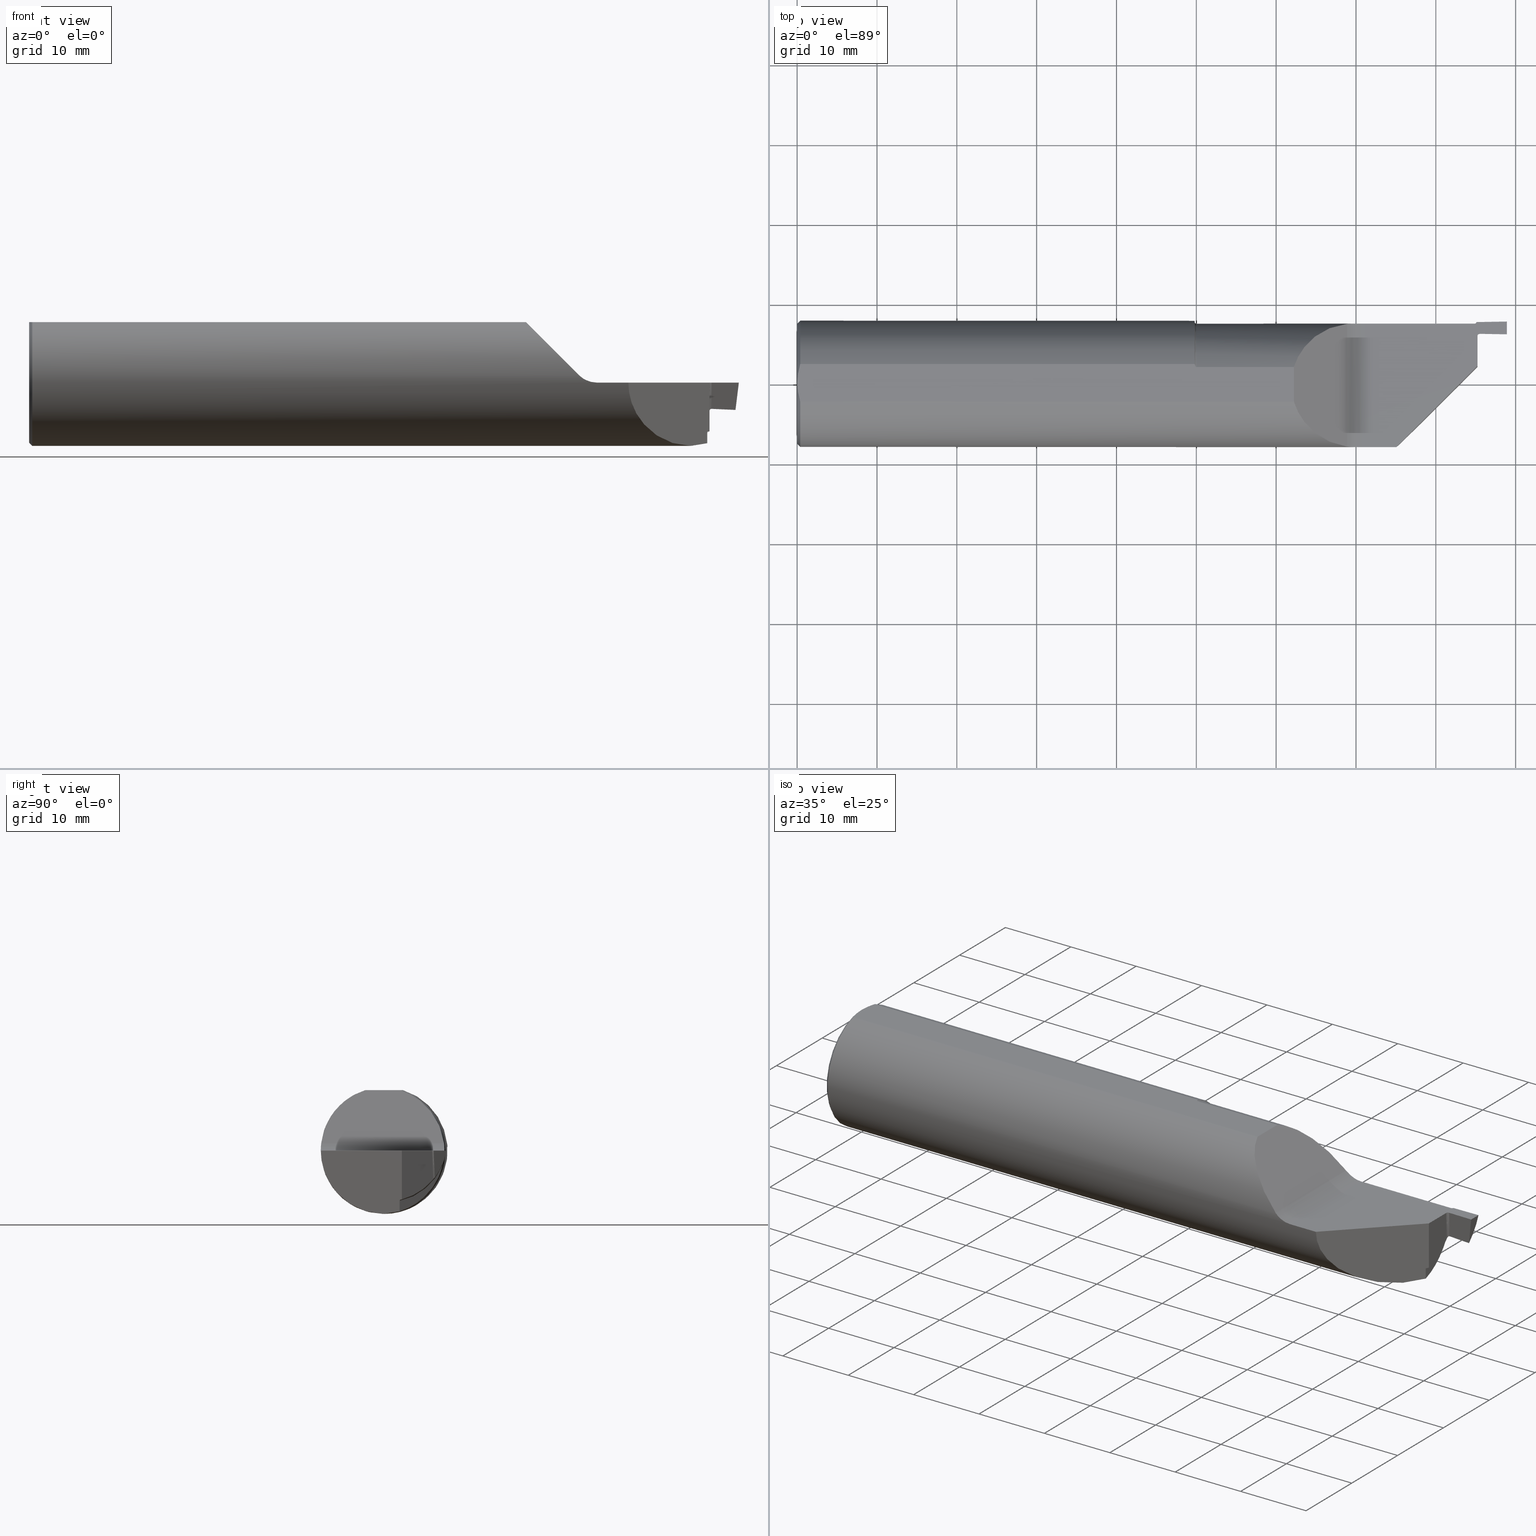
[diagram: canonical four-view strip — front | top / right | iso, engineering-drawing reading convention]
A machine part, canonical four-view strip (front | top / right | iso — engineering-drawing reading convention). The complete STEP part file that produces these views, byte-faithful:
ISO-10303-21;
HEADER;
FILE_DESCRIPTION (( 'STEP AP203' ),
    '1' );
FILE_NAME ('220145-FG625-062.STEP',
    '2024-06-10T23:52:45',
    ( '' ),
    ( '' ),
    'SwSTEP 2.0',
    'SolidWorks 2022',
    '' );
FILE_SCHEMA (( 'CONFIG_CONTROL_DESIGN' ));
ENDSEC;

DATA;
#1 = CARTESIAN_POINT ( 'NONE',  ( 0.000000000000000000, 0.000000000000000000, 0.000000000000000000 ) ) ;
#2 = CIRCLE ( 'NONE', #670, 0.3123500000000000165 ) ;
#3 = CARTESIAN_POINT ( 'NONE',  ( 3.344088245977288487, 0.07673824597728906571, -0.2481607617294554480 ) ) ;
#4 = CARTESIAN_POINT ( 'NONE',  ( 3.262867780507748616, -0.004482219492250623903, -0.3123178384409545649 ) ) ;
#5 = PLANE ( 'NONE',  #467 ) ;
#6 =( BOUNDED_CURVE ( )  B_SPLINE_CURVE ( 3, ( #4, #267, #136, #488 ),
 .UNSPECIFIED., .F., .T. ) 
 B_SPLINE_CURVE_WITH_KNOTS ( ( 4, 4 ),
 ( 4.726739463297899846, 6.283185307179586232 ),
 .UNSPECIFIED. ) 
 CURVE ( )  GEOMETRIC_REPRESENTATION_ITEM ( )  RATIONAL_B_SPLINE_CURVE ( ( 1.000000000000000000, 0.8081081314968836526, 0.8081081314968836526, 1.000000000000000000 ) ) 
 REPRESENTATION_ITEM ( '' )  );
#7 = CARTESIAN_POINT ( 'NONE',  ( 3.344088245977288487, 0.07673824597728906571, -0.2464578973247775473 ) ) ;
#8 = ADVANCED_FACE ( 'NONE', ( #139 ), #683, .F. ) ;
#9 = LINE ( 'NONE', #498, #421 ) ;
#10 = PLANE ( 'NONE',  #176 ) ;
#11 = EDGE_LOOP ( 'NONE', ( #564, #58, #772 ) ) ;
#12 = MECHANICAL_CONTEXT ( 'NONE', #465, 'mechanical' ) ;
#13 = CARTESIAN_POINT ( 'NONE',  ( 3.353006244820754045, 0.08565624482075563650, -0.2409712390270424553 ) ) ;
#14 = CARTESIAN_POINT ( 'NONE',  ( 3.341999999999999638, 0.2973492383597809430, 0.000000000000000000 ) ) ;
#15 = CONICAL_SURFACE ( 'NONE', #485, 0.2973499999999995036, 0.7853981633974460586 ) ;
#16 = VERTEX_POINT ( 'NONE', #420 ) ;
#17 = APPLICATION_PROTOCOL_DEFINITION ( 'international standard', 'config_control_design', 1994, #465 ) ;
#18 = EDGE_CURVE ( 'NONE', #275, #256, #454, .T. ) ;
#19 = PRODUCT_RELATED_PRODUCT_CATEGORY ( 'detail', '', ( #236 ) ) ;
#20 = CARTESIAN_POINT ( 'NONE',  ( 3.342000000000061810, 0.2930161518995065828, -0.05185945814795141218 ) ) ;
#21 = APPROVAL_PERSON_ORGANIZATION ( #667, #514, #875 ) ;
#22 = CARTESIAN_POINT ( 'NONE',  ( 3.450402693845658675, 0.2593229245976808039, -0.4039376432152650964 ) ) ;
#23 = ORIENTED_EDGE ( 'NONE', *, *, #881, .T. ) ;
#24 = PERSON_AND_ORGANIZATION ( #706, #618 ) ;
#25 = FACE_OUTER_BOUND ( 'NONE', #892, .T. ) ;
#26 = CARTESIAN_POINT ( 'NONE',  ( 3.343704901788177253, 0.09870001986279271222, -0.2914479566919891407 ) ) ;
#27 =( NAMED_UNIT ( * ) SI_UNIT ( $, .STERADIAN. ) SOLID_ANGLE_UNIT ( ) );
#28 = CARTESIAN_POINT ( 'NONE',  ( 1.960000000000000409, 0.07781981166122950433, 0.2983500000000000041 ) ) ;
#29 = CARTESIAN_POINT ( 'NONE',  ( 3.342626444000296626, 0.1604848251509714274, -0.2595327083607564256 ) ) ;
#30 = EDGE_CURVE ( 'NONE', #801, #521, #106, .T. ) ;
#31 = AXIS2_PLACEMENT_3D ( 'NONE', #817, #464, #43 ) ;
#32 = ORIENTED_EDGE ( 'NONE', *, *, #860, .F. ) ;
#33 = AXIS2_PLACEMENT_3D ( 'NONE', #901, #135, #266 ) ;
#34 = DIRECTION ( 'NONE',  ( -1.000000000000000000, -0.000000000000000000, -0.000000000000000000 ) ) ;
#35 = CARTESIAN_POINT ( 'NONE',  ( 2.954999999999998295, -0.3123499999999999610, 0.000000000000000000 ) ) ;
#36 = ADVANCED_FACE ( 'NONE', ( #207 ), #10, .F. ) ;
#37 = ORIENTED_EDGE ( 'NONE', *, *, #852, .F. ) ;
#38 = PERSON_AND_ORGANIZATION_ROLE ( 'classification_officer' ) ;
#39 = CARTESIAN_POINT ( 'NONE',  ( 1.960064105020415504, 0.1371422438581685610, -0.2810169237995415181 ) ) ;
#40 = VERTEX_POINT ( 'NONE', #80 ) ;
#41 = ORIENTED_EDGE ( 'NONE', *, *, #424, .T. ) ;
#42 =( BOUNDED_CURVE ( )  B_SPLINE_CURVE ( 3, ( #456, #663, #307, #122 ),
 .UNSPECIFIED., .F., .T. ) 
 B_SPLINE_CURVE_WITH_KNOTS ( ( 4, 4 ),
 ( 4.829815950483568265, 5.981106177898001697 ),
 .UNSPECIFIED. ) 
 CURVE ( )  GEOMETRIC_REPRESENTATION_ITEM ( )  RATIONAL_B_SPLINE_CURVE ( ( 1.000000000000000000, 0.8925608616953477625, 0.8925608616953477625, 1.000000000000000000 ) ) 
 REPRESENTATION_ITEM ( '' )  );
#43 = DIRECTION ( 'NONE',  ( 1.000000000000000000, 0.000000000000000000, 0.000000000000000000 ) ) ;
#44 = ORIENTED_EDGE ( 'NONE', *, *, #134, .F. ) ;
#45 = CARTESIAN_POINT ( 'NONE',  ( 3.365174524064373340, 0.2467026257962136593, -1.707404996040164512E-17 ) ) ;
#46 = VECTOR ( 'NONE', #201, 39.37007874015748854 ) ;
#47 = ORIENTED_EDGE ( 'NONE', *, *, #85, .F. ) ;
#48 = AXIS2_PLACEMENT_3D ( 'NONE', #611, #621, #131 ) ;
#49 = UNCERTAINTY_MEASURE_WITH_UNIT (LENGTH_MEASURE( 1.000000000000000082E-05 ), #846, 'distance_accuracy_value', 'NONE');
#50 = EDGE_CURVE ( 'NONE', #595, #247, #348, .T. ) ;
#51 = CARTESIAN_POINT ( 'NONE',  ( 0.01500000000000059272, 0.000000000000000000, -0.3123500000000000165 ) ) ;
#52 = CARTESIAN_POINT ( 'NONE',  ( 1.960609346587106394, 0.09615431653023193137, -0.2975417998640902950 ) ) ;
#53 = VERTEX_POINT ( 'NONE', #346 ) ;
#54 = ORIENTED_EDGE ( 'NONE', *, *, #405, .T. ) ;
#55 = CARTESIAN_POINT ( 'NONE',  ( 2.711388347648313157, -0.3101968881405479106, 0.03661165235168182402 ) ) ;
#56 = DIRECTION ( 'NONE',  ( 0.000000000000000000, 0.000000000000000000, 1.000000000000000000 ) ) ;
#57 = ORIENTED_EDGE ( 'NONE', *, *, #487, .T. ) ;
#58 = ORIENTED_EDGE ( 'NONE', *, *, #233, .T. ) ;
#59 = CARTESIAN_POINT ( 'NONE',  ( 1.960728097748990928, 0.09246512856206982878, 0.2983499999999997820 ) ) ;
#60 = CARTESIAN_POINT ( 'NONE',  ( 3.355086760165964854, 0.2476138888744324751, -0.1423577944099313486 ) ) ;
#61 = EDGE_CURVE ( 'NONE', #105, #320, #845, .T. ) ;
#62 = CARTESIAN_POINT ( 'NONE',  ( 3.354999999999999538, 0.2367041488446496589, -0.3123500000000000165 ) ) ;
#63 = DIRECTION ( 'NONE',  ( 0.000000000000000000, 0.000000000000000000, -1.000000000000000000 ) ) ;
#64 = CARTESIAN_POINT ( 'NONE',  ( 3.341999999999999638, 0.1963737778918792642, -0.2300296049984300595 ) ) ;
#65 = APPROVAL_PERSON_ORGANIZATION ( #149, #747, #428 ) ;
#66 = CARTESIAN_POINT ( 'NONE',  ( 1.961168654006056222, 0.08963362299606143779, 0.2983500000000000596 ) ) ;
#67 = CARTESIAN_POINT ( 'NONE',  ( 3.346706985850119942, 0.07935698585012063155, -0.2428819054510645281 ) ) ;
#68 = ORIENTED_EDGE ( 'NONE', *, *, #424, .F. ) ;
#69 = PLANE ( 'NONE',  #389 ) ;
#70 = CYLINDRICAL_SURFACE ( 'NONE', #270, 0.1250000000000000000 ) ;
#71 = CARTESIAN_POINT ( 'NONE',  ( 0.000000000000000000, 3.641487257264648486E-17, 0.2973499999999995036 ) ) ;
#72 = DIRECTION ( 'NONE',  ( -1.000000000000000000, 0.000000000000000000, -0.000000000000000000 ) ) ;
#73 = CIRCLE ( 'NONE', #371, 0.3123500000000000165 ) ;
#74 = EDGE_CURVE ( 'NONE', #195, #16, #643, .T. ) ;
#75 = CARTESIAN_POINT ( 'NONE',  ( 2.767437696019467985, -0.3123286490856566622, 0.003981597903693289385 ) ) ;
#76 = ADVANCED_FACE ( 'NONE', ( #211 ), #449, .F. ) ;
#77 = CARTESIAN_POINT ( 'NONE',  ( 1.960187379179326728, 0.1171499089251766407, 0.2906996517855017781 ) ) ;
#78 = APPROVAL_DATE_TIME ( #715, #261 ) ;
#79 = CARTESIAN_POINT ( 'NONE',  ( 2.711388347648312713, 0.2951971671624064042, 0.03661165235168226811 ) ) ;
#80 = CARTESIAN_POINT ( 'NONE',  ( 2.711388347648313157, -0.3101968881405479106, 0.03661165235168182402 ) ) ;
#81 = ORIENTED_EDGE ( 'NONE', *, *, #852, .T. ) ;
#82 = APPROVAL_STATUS ( 'not_yet_approved' ) ;
#83 = DIRECTION ( 'NONE',  ( -0.9998476951563914916, -0.01745240643726934937, 0.000000000000000000 ) ) ;
#84 = LINE ( 'NONE', #22, #287 ) ;
#85 = EDGE_CURVE ( 'NONE', #805, #471, #755, .T. ) ;
#86 = PRODUCT_DEFINITION ( 'UNKNOWN', '', #602, #463 ) ;
#87 = PERSON_AND_ORGANIZATION ( #706, #618 ) ;
#88 = CARTESIAN_POINT ( 'NONE',  ( 3.345272150819839307, 0.2954058254660125171, -0.04060438707513087248 ) ) ;
#89 = TOROIDAL_SURFACE ( 'NONE', #816, 0.3000000000000000999, 0.005000000000000000104 ) ;
#90 = DIRECTION ( 'NONE',  ( -0.9925461516413219831, 0.000000000000000000, 0.1218693434051483226 ) ) ;
#91 = EDGE_LOOP ( 'NONE', ( #44, #326, #609, #623 ) ) ;
#92 = PERSON_AND_ORGANIZATION_ROLE ( 'design_supplier' ) ;
#93 = CARTESIAN_POINT ( 'NONE',  ( 3.348669633751215624, 0.2999888212344824501, -0.02403693442436465738 ) ) ;
#94 = CARTESIAN_POINT ( 'NONE',  ( 0.01499999999999581182, -0.09246512856207692033, 0.2983500000000000041 ) ) ;
#95 = APPROVAL_ROLE ( '' ) ;
#96 = CARTESIAN_POINT ( 'NONE',  ( 3.349976041474970856, 0.3047305604229402776, 1.064327071680889252E-15 ) ) ;
#97 = CARTESIAN_POINT ( 'NONE',  ( 3.355001631252470862, 0.2368847655338832126, -0.0003489949022282907618 ) ) ;
#98 = DIRECTION ( 'NONE',  ( 0.000000000000000000, 0.000000000000000000, 1.000000000000000000 ) ) ;
#99 = EDGE_CURVE ( 'NONE', #822, #178, #130, .T. ) ;
#100 = CARTESIAN_POINT ( 'NONE',  ( 3.343894413779878505, 0.08784288512964665008, -0.2955072495312169867 ) ) ;
#101 = CIRCLE ( 'NONE', #612, 0.3205000000000000626 ) ;
#102 = CC_DESIGN_PERSON_AND_ORGANIZATION_ASSIGNMENT ( #431, #710, ( #602 ) ) ;
#103 = VECTOR ( 'NONE', #774, 39.37007874015748143 ) ;
#104 = B_SPLINE_CURVE_WITH_KNOTS ( 'NONE', 3,
 ( #811, #457, #112, #190 ),
 .UNSPECIFIED., .F., .F.,
 ( 4, 4 ),
 ( 0.0005057837439297899413, 0.0005810094594214404050 ),
 .UNSPECIFIED. ) ;
#105 = VERTEX_POINT ( 'NONE', #71 ) ;
#106 =( BOUNDED_CURVE ( )  B_SPLINE_CURVE ( 3, ( #763, #898, #832, #477 ),
 .UNSPECIFIED., .F., .T. ) 
 B_SPLINE_CURVE_WITH_KNOTS ( ( 4, 4 ),
 ( 0.6682696372372636251, 0.6905140082564619197 ),
 .UNSPECIFIED. ) 
 CURVE ( )  GEOMETRIC_REPRESENTATION_ITEM ( )  RATIONAL_B_SPLINE_CURVE ( ( 1.000000000000000000, 0.9999587660882292006, 0.9999587660882292006, 1.000000000000000000 ) ) 
 REPRESENTATION_ITEM ( '' )  );
#107 = CARTESIAN_POINT ( 'NONE',  ( 3.342000000000061810, 0.2930161518995065828, -0.05185945814795141218 ) ) ;
#108 = CARTESIAN_POINT ( 'NONE',  ( 3.350199076402195608, 0.01314244789499796270, 0.04499999999999999833 ) ) ;
#109 = ORIENTED_EDGE ( 'NONE', *, *, #556, .T. ) ;
#110 = VERTEX_POINT ( 'NONE', #64 ) ;
#111 = CARTESIAN_POINT ( 'NONE',  ( 3.340375989365386378, 0.2894132848368675681, -0.07007695630439270129 ) ) ;
#112 = CARTESIAN_POINT ( 'NONE',  ( 3.342690609634284993, 0.07534060963428514113, -0.2991121555470714344 ) ) ;
#113 = EDGE_CURVE ( 'NONE', #396, #827, #626, .T. ) ;
#114 = EDGE_LOOP ( 'NONE', ( #794, #694 ) ) ;
#115 = DATE_TIME_ROLE ( 'classification_date' ) ;
#116 = CARTESIAN_POINT ( 'NONE',  ( 3.365253504895685754, 0.2512274345916868379, -0.1295933084125058532 ) ) ;
#117 = B_SPLINE_CURVE_WITH_KNOTS ( 'NONE', 3,
 ( #466, #742, #403, #553, #273, #613, #891, #147 ),
 .UNSPECIFIED., .F., .F.,
 ( 4, 2, 2, 4 ),
 ( 0.000000000000000000, 0.0002591801597930264893, 0.0003887702396895404387, 0.0005183603195860543881 ),
 .UNSPECIFIED. ) ;
#118 = CARTESIAN_POINT ( 'NONE',  ( 3.355000216275711988, 0.2367165392718555972, -0.0003548694603780580569 ) ) ;
#119 = EDGE_LOOP ( 'NONE', ( #161, #217, #512 ) ) ;
#120 = EDGE_LOOP ( 'NONE', ( #171, #490, #319, #529, #586, #605, #324 ) ) ;
#121 = VECTOR ( 'NONE', #214, 39.37007874015748143 ) ;
#122 = CARTESIAN_POINT ( 'NONE',  ( 2.449649999999997885, 0.07781981166122939331, 0.2983500000000000041 ) ) ;
#123 = CARTESIAN_POINT ( 'NONE',  ( 0.01056418794333125952, 0.07748082131622367752, 0.2983500000000000041 ) ) ;
#124 = CC_DESIGN_SECURITY_CLASSIFICATION ( #731, ( #602 ) ) ;
#125 = VERTEX_POINT ( 'NONE', #216 ) ;
#126 = CARTESIAN_POINT ( 'NONE',  ( 2.767240569818964158, 0.2973273312837141913, 0.004032474903713762111 ) ) ;
#127 = EDGE_CURVE ( 'NONE', #396, #192, #427, .T. ) ;
#128 = CARTESIAN_POINT ( 'NONE',  ( 1.968000000000000416, -0.004482219491799574983, -0.3123178384409500685 ) ) ;
#129 = VERTEX_POINT ( 'NONE', #789 ) ;
#130 = B_SPLINE_CURVE_WITH_KNOTS ( 'NONE', 3,
 ( #404, #213, #771, #415 ),
 .UNSPECIFIED., .F., .F.,
 ( 4, 4 ),
 ( 0.000000000000000000, 5.159569977872065683E-05 ),
 .UNSPECIFIED. ) ;
#131 = DIRECTION ( 'NONE',  ( -0.7071067811865484609, -0.7071067811865464625, 0.000000000000000000 ) ) ;
#132 = ORIENTED_EDGE ( 'NONE', *, *, #675, .F. ) ;
#133 = CARTESIAN_POINT ( 'NONE',  ( 2.799776695296631868, 0.2973492383597807764, -1.707404996040164512E-17 ) ) ;
#134 = EDGE_CURVE ( 'NONE', #110, #627, #367, .T. ) ;
#135 = DIRECTION ( 'NONE',  ( -1.000000000000000000, -0.000000000000000000, -0.000000000000000000 ) ) ;
#136 = CARTESIAN_POINT ( 'NONE',  ( 2.954999999999998295, -0.3123500000000000165, -0.1808952411000439298 ) ) ;
#137 = AXIS2_PLACEMENT_3D ( 'NONE', #783, #366, #430 ) ;
#138 = LINE ( 'NONE', #277, #579 ) ;
#139 = FACE_OUTER_BOUND ( 'NONE', #439, .T. ) ;
#140 = CARTESIAN_POINT ( 'NONE',  ( 0.000000000000000000, 0.000000000000000000, 0.000000000000000000 ) ) ;
#141 = FACE_OUTER_BOUND ( 'NONE', #534, .T. ) ;
#142 = DIRECTION ( 'NONE',  ( 0.7071067811865491270, 8.659560562354913137E-17, 0.7071067811865459074 ) ) ;
#143 = EDGE_CURVE ( 'NONE', #521, #651, #84, .T. ) ;
#144 = CARTESIAN_POINT ( 'NONE',  ( 2.723503842258455432, 0.2963290950768751042, 0.02563397962624387738 ) ) ;
#145 = CARTESIAN_POINT ( 'NONE',  ( 1.968000000000000416, -0.01515076164021939703, 0.000000000000000000 ) ) ;
#146 = VECTOR ( 'NONE', #830, 39.37007874015748143 ) ;
#147 = CARTESIAN_POINT ( 'NONE',  ( 3.365253504895685754, 0.2512274345916868379, -0.1295933084125058532 ) ) ;
#148 = EDGE_LOOP ( 'NONE', ( #641, #354, #238, #298, #797, #559, #724, #620, #54, #878 ) ) ;
#149 = PERSON_AND_ORGANIZATION ( #706, #618 ) ;
#150 = CC_DESIGN_APPROVAL ( #514, ( #731 ) ) ;
#151 = DIRECTION ( 'NONE',  ( -1.000000000000000000, 0.000000000000000000, 0.000000000000000000 ) ) ;
#152 = ADVANCED_FACE ( 'NONE', ( #572 ), #855, .F. ) ;
#153 = CARTESIAN_POINT ( 'NONE',  ( 3.343152842513267053, 0.1303274745403083523, -0.2769077261499216513 ) ) ;
#154 = CALENDAR_DATE ( 2024, 10, 6 ) ;
#155 = DIRECTION ( 'NONE',  ( 0.7071067811865439090, 0.000000000000000000, -0.7071067811865511255 ) ) ;
#156 = CARTESIAN_POINT ( 'NONE',  ( 3.359314721643837487, 0.2468049090279304525, -2.109021780287689106E-17 ) ) ;
#157 = PERSON_AND_ORGANIZATION ( #706, #618 ) ;
#158 = DIRECTION ( 'NONE',  ( 0.7071067811865491270, 0.000000000000000000, -0.7071067811865459074 ) ) ;
#159 = DIRECTION ( 'NONE',  ( -1.000000000000000000, 0.000000000000000000, 0.000000000000000000 ) ) ;
#160 = ADVANCED_FACE ( 'NONE', ( #222 ), #305, .T. ) ;
#161 = ORIENTED_EDGE ( 'NONE', *, *, #596, .T. ) ;
#162 = DIRECTION ( 'NONE',  ( 1.000000000000000000, 0.000000000000000000, 0.000000000000000000 ) ) ;
#163 = CARTESIAN_POINT ( 'NONE',  ( 3.355004131721905036, 0.2369970165289097541, -0.006779410930305249973 ) ) ;
#164 = CARTESIAN_POINT ( 'NONE',  ( 3.501506277050174365, 0.3123500000000000165, 0.01226764211312855388 ) ) ;
#165 = CALENDAR_DATE ( 2024, 10, 6 ) ;
#166 = EDGE_CURVE ( 'NONE', #850, #505, #202, .T. ) ;
#167 = EDGE_CURVE ( 'NONE', #651, #850, #707, .T. ) ;
#168 = CARTESIAN_POINT ( 'NONE',  ( 3.355002640477259046, 0.2369406330266873584, -0.003549187647772788622 ) ) ;
#169 = B_SPLINE_CURVE_WITH_KNOTS ( 'NONE', 3,
 ( #299, #163, #168, #231 ),
 .UNSPECIFIED., .F., .F.,
 ( 4, 4 ),
 ( 0.02877871289176329658, 0.02902260474753981523 ),
 .UNSPECIFIED. ) ;
#170 = CARTESIAN_POINT ( 'NONE',  ( 3.355240011630399533, 0.2504544059412017742, -0.3938158249797067967 ) ) ;
#171 = ORIENTED_EDGE ( 'NONE', *, *, #527, .F. ) ;
#172 = COORDINATED_UNIVERSAL_TIME_OFFSET ( 8, 0, .BEHIND. ) ;
#173 = DIRECTION ( 'NONE',  ( 0.000000000000000000, 0.000000000000000000, -1.000000000000000000 ) ) ;
#174 = CARTESIAN_POINT ( 'NONE',  ( 3.355086886395031609, 0.2416818670821976600, -0.1425649135485625441 ) ) ;
#175 = ORIENTED_EDGE ( 'NONE', *, *, #675, .T. ) ;
#176 = AXIS2_PLACEMENT_3D ( 'NONE', #278, #835, #690 ) ;
#177 = CARTESIAN_POINT ( 'NONE',  ( 2.449649999999997885, -0.09246512856206932918, 0.2983500000000000041 ) ) ;
#178 = VERTEX_POINT ( 'NONE', #353 ) ;
#179 = CARTESIAN_POINT ( 'NONE',  ( 0.002268765941513705385, 0.03147306883729043131, 0.2983500000000000041 ) ) ;
#180 = B_SPLINE_CURVE_WITH_KNOTS ( 'NONE', 3,
 ( #890, #205, #144, #552, #837, #624, #126, #761, #264, #398 ),
 .UNSPECIFIED., .F., .F.,
 ( 4, 2, 2, 2, 4 ),
 ( 0.000000000000000000, 0.0006199328346996068641, 0.001239865669399213728, 0.001859798504098820592, 0.002479731338798427456 ),
 .UNSPECIFIED. ) ;
#181 = CC_DESIGN_DATE_AND_TIME_ASSIGNMENT ( #530, #115, ( #731 ) ) ;
#182 = VERTEX_POINT ( 'NONE', #35 ) ;
#183 = CARTESIAN_POINT ( 'NONE',  ( 3.354999999999999538, 0.1972929545011108676, -0.1933218207390127730 ) ) ;
#184 = CARTESIAN_POINT ( 'NONE',  ( 3.355000090046644345, 0.2426485610640903290, -0.0001477503217468630525 ) ) ;
#185 = ORIENTED_EDGE ( 'NONE', *, *, #785, .F. ) ;
#186 = ORIENTED_EDGE ( 'NONE', *, *, #61, .F. ) ;
#187 = CALENDAR_DATE ( 2024, 10, 6 ) ;
#188 = CARTESIAN_POINT ( 'NONE',  ( 0.001000000000000257410, -0.01567344482694200958, 0.2983500000000000041 ) ) ;
#189 = ORIENTED_EDGE ( 'NONE', *, *, #527, .T. ) ;
#190 = CARTESIAN_POINT ( 'NONE',  ( 3.341999999999999638, 0.07464999999999993863, -0.2993193498737371505 ) ) ;
#191 = ORIENTED_EDGE ( 'NONE', *, *, #392, .T. ) ;
#192 = VERTEX_POINT ( 'NONE', #14 ) ;
#193 = EDGE_CURVE ( 'NONE', #192, #595, #369, .T. ) ;
#194 = DIRECTION ( 'NONE',  ( -0.000000000000000000, -0.000000000000000000, 1.000000000000000000 ) ) ;
#195 = VERTEX_POINT ( 'NONE', #569 ) ;
#196 = CARTESIAN_POINT ( 'NONE',  ( 0.007054879162604068242, 0.06230152177692626497, 0.2983500000000000596 ) ) ;
#197 = ORIENTED_EDGE ( 'NONE', *, *, #99, .T. ) ;
#198 = LOCAL_TIME ( 16, 52, 45.00000000000000000, #780 ) ;
#199 = EDGE_CURVE ( 'NONE', #275, #129, #101, .T. ) ;
#200 = CARTESIAN_POINT ( 'NONE',  ( 1.961795050004579100, 0.08682163519343566449, 0.2983500000000000041 ) ) ;
#201 = DIRECTION ( 'NONE',  ( -0.7071067811865484609, -0.7071067811865464625, 0.000000000000000000 ) ) ;
#202 =( BOUNDED_CURVE ( )  B_SPLINE_CURVE ( 3, ( #793, #156, #853, #97 ),
 .UNSPECIFIED., .F., .T. ) 
 B_SPLINE_CURVE_WITH_KNOTS ( ( 4, 4 ),
 ( 0.000000000000000000, 1.000000000000000000 ),
 .UNSPECIFIED. ) 
 CURVE ( )  GEOMETRIC_REPRESENTATION_ITEM ( )  RATIONAL_B_SPLINE_CURVE ( ( 1.000000000000000000, 0.8045942050572900683, 0.8045942050572900683, 1.000000000000000000 ) ) 
 REPRESENTATION_ITEM ( '' )  );
#203 = VERTEX_POINT ( 'NONE', #237 ) ;
#204 = EDGE_LOOP ( 'NONE', ( #749, #390, #197, #570, #673, #615 ) ) ;
#205 = CARTESIAN_POINT ( 'NONE',  ( 2.717205560604044390, 0.2958834220351636568, 0.03079443939595079630 ) ) ;
#206 = CARTESIAN_POINT ( 'NONE',  ( 2.783406291026808255, -0.3123529779476911239, 0.0008095237780517812410 ) ) ;
#207 = FACE_OUTER_BOUND ( 'NONE', #678, .T. ) ;
#208 = VECTOR ( 'NONE', #769, 39.37007874015748143 ) ;
#209 = CARTESIAN_POINT ( 'NONE',  ( 3.341999999999999638, 0.1963737778918792642, -0.2300296049984300595 ) ) ;
#210 = CARTESIAN_POINT ( 'NONE',  ( 2.711388347648313157, -0.3101968881405479106, 0.03661165235168182402 ) ) ;
#211 = FACE_OUTER_BOUND ( 'NONE', #714, .T. ) ;
#212 = DIRECTION ( 'NONE',  ( -1.000000000000000000, -0.000000000000000000, -0.000000000000000000 ) ) ;
#213 = CARTESIAN_POINT ( 'NONE',  ( 3.354999999999999538, 0.2371527360042250121, -0.1470876698976918140 ) ) ;
#214 = DIRECTION ( 'NONE',  ( 0.000000000000000000, 0.000000000000000000, -1.000000000000000000 ) ) ;
#215 = CARTESIAN_POINT ( 'NONE',  ( 3.355001631252470862, 0.2368847655338832126, -0.0003489949022282907618 ) ) ;
#216 = CARTESIAN_POINT ( 'NONE',  ( 3.355086369475830388, 0.2416522528010326964, -0.1417167423114557567 ) ) ;
#217 = ORIENTED_EDGE ( 'NONE', *, *, #648, .T. ) ;
#218 = VECTOR ( 'NONE', #433, 39.37007874015748143 ) ;
#219 = APPLICATION_PROTOCOL_DEFINITION ( 'international standard', 'config_control_design', 1994, #241 ) ;
#220 = AXIS2_PLACEMENT_3D ( 'NONE', #722, #235, #437 ) ;
#221 = AXIS2_PLACEMENT_3D ( 'NONE', #698, #759, #339 ) ;
#222 = FACE_OUTER_BOUND ( 'NONE', #114, .T. ) ;
#223 = B_SPLINE_CURVE_WITH_KNOTS ( 'NONE', 3,
 ( #59, #66, #200, #416, #557, #413, #895, #341, #402, #628 ),
 .UNSPECIFIED., .F., .F.,
 ( 4, 2, 2, 2, 4 ),
 ( 0.002052484508306465314, 0.002269510432392931112, 0.002378023394436168132, 0.002432279875457780786, 0.002486536356479393875 ),
 .UNSPECIFIED. ) ;
#224 = CARTESIAN_POINT ( 'NONE',  ( 2.750000000000000000, 0.4123500000000000498, -0.002000000000005264927 ) ) ;
#225 = CARTESIAN_POINT ( 'NONE',  ( 3.344088245977288487, 0.07673824597728919061, -0.2989750571046434491 ) ) ;
#226 =( BOUNDED_CURVE ( )  B_SPLINE_CURVE ( 3, ( #55, #607, #669, #177 ),
 .UNSPECIFIED., .F., .T. ) 
 B_SPLINE_CURVE_WITH_KNOTS ( ( 4, 4 ),
 ( 4.829872603322638902, 5.982651106322981249 ),
 .UNSPECIFIED. ) 
 CURVE ( )  GEOMETRIC_REPRESENTATION_ITEM ( )  RATIONAL_B_SPLINE_CURVE ( ( 1.000000000000000000, 0.8922906463574401537, 0.8922906463574401537, 1.000000000000000000 ) ) 
 REPRESENTATION_ITEM ( '' )  );
#227 = DIRECTION ( 'NONE',  ( 0.000000000000000000, 0.000000000000000000, 1.000000000000000000 ) ) ;
#228 = CARTESIAN_POINT ( 'NONE',  ( 3.347158333321837098, 0.2973433684991900749, -0.03412824234028294379 ) ) ;
#229 = CARTESIAN_POINT ( 'NONE',  ( 1.960000000000000409, -0.01515076164021939703, 0.000000000000000000 ) ) ;
#230 = CALENDAR_DATE ( 2024, 10, 6 ) ;
#231 = CARTESIAN_POINT ( 'NONE',  ( 3.355001631252470862, 0.2368847655338832126, -0.0003489949022282907618 ) ) ;
#232 = DIRECTION ( 'NONE',  ( -1.000000000000000000, -0.000000000000000000, -0.000000000000000000 ) ) ;
#233 = EDGE_CURVE ( 'NONE', #521, #247, #284, .T. ) ;
#234 = VERTEX_POINT ( 'NONE', #717 ) ;
#235 = DIRECTION ( 'NONE',  ( -0.9998476951563914916, -0.01745240643726934937, -0.000000000000000000 ) ) ;
#236 = PRODUCT ( '220145-FG625-062', '220145-FG625-062', '', ( #12 ) ) ;
#237 = CARTESIAN_POINT ( 'NONE',  ( 3.262867780507748616, -0.004482219492250623903, -0.3123178384409545649 ) ) ;
#238 = ORIENTED_EDGE ( 'NONE', *, *, #113, .T. ) ;
#239 = CARTESIAN_POINT ( 'NONE',  ( 3.350199076402195608, 0.01314244789499796097, 0.04499999999999999833 ) ) ;
#240 = CARTESIAN_POINT ( 'NONE',  ( 1.966932488357366005, -0.003051807244517923401, -0.3123353797966956225 ) ) ;
#241 = APPLICATION_CONTEXT ( 'configuration controlled 3d designs of mechanical parts and assemblies' ) ;
#242 = ORIENTED_EDGE ( 'NONE', *, *, #379, .F. ) ;
#243 = EDGE_CURVE ( 'NONE', #471, #256, #576, .T. ) ;
#244 = DIRECTION ( 'NONE',  ( 0.9998476951563914916, 0.01745240643726934937, -0.000000000000000000 ) ) ;
#245 = CARTESIAN_POINT ( 'NONE',  ( 1.961347162358179741, 0.06790716442675048814, -0.3052300644977108401 ) ) ;
#246 = ORIENTED_EDGE ( 'NONE', *, *, #134, .T. ) ;
#247 = VERTEX_POINT ( 'NONE', #358 ) ;
#248 = ORIENTED_EDGE ( 'NONE', *, *, #860, .T. ) ;
#249 = CARTESIAN_POINT ( 'NONE',  ( 1.964366784501071495, 0.01335244570052913221, -0.3120861625923382343 ) ) ;
#250 = ORIENTED_EDGE ( 'NONE', *, *, #650, .T. ) ;
#251 = DIRECTION ( 'NONE',  ( -0.0006090802009083879243, -0.03489418134011375294, 0.9993908270190957621 ) ) ;
#252 = VERTEX_POINT ( 'NONE', #94 ) ;
#253 = CARTESIAN_POINT ( 'NONE',  ( 1.965693869291541995, 0.002352038502179883053, -0.3123464166765421157 ) ) ;
#254 = ORIENTED_EDGE ( 'NONE', *, *, #744, .T. ) ;
#255 = ADVANCED_FACE ( 'NONE', ( #362 ), #640, .F. ) ;
#256 = VERTEX_POINT ( 'NONE', #301 ) ;
#257 = CARTESIAN_POINT ( 'NONE',  ( 3.341309334049585189, 0.2924058107633026315, -0.05548631717975908983 ) ) ;
#258 = CARTESIAN_POINT ( 'NONE',  ( 1.967211019143644046, -0.003689047498845545586, -0.3123282865089277993 ) ) ;
#259 = VECTOR ( 'NONE', #489, 39.37007874015748143 ) ;
#260 = ADVANCED_FACE ( 'NONE', ( #583 ), #859, .F. ) ;
#261 = APPROVAL ( #699, 'UNSPECIFIED' ) ;
#262 = DIRECTION ( 'NONE',  ( 0.000000000000000000, 0.000000000000000000, -1.000000000000000000 ) ) ;
#263 = LINE ( 'NONE', #825, #259 ) ;
#264 = CARTESIAN_POINT ( 'NONE',  ( 2.791523900243894740, 0.2973492383597807209, -2.254308158834279832E-17 ) ) ;
#265 = CARTESIAN_POINT ( 'NONE',  ( 3.355017568914127502, 0.2373818073687514185, -0.02882742140392285241 ) ) ;
#266 = DIRECTION ( 'NONE',  ( 0.000000000000000000, 0.000000000000000000, 1.000000000000000000 ) ) ;
#267 = CARTESIAN_POINT ( 'NONE',  ( 3.081991165541784206, -0.1853588344582151326, -0.3097219934730743307 ) ) ;
#268 = EDGE_CURVE ( 'NONE', #129, #275, #73, .T. ) ;
#269 = CARTESIAN_POINT ( 'NONE',  ( 2.723623800555937446, -0.3113371557985921134, 0.02553995178686549114 ) ) ;
#270 = AXIS2_PLACEMENT_3D ( 'NONE', #625, #792, #705 ) ;
#271 = CIRCLE ( 'NONE', #786, 0.2973499999999995036 ) ;
#272 = CARTESIAN_POINT ( 'NONE',  ( 3.341999999999999638, 0.07464999999999993863, -0.2993193498737371505 ) ) ;
#273 = CARTESIAN_POINT ( 'NONE',  ( 3.359238870506862096, 0.2495533039167108780, -0.1317132150910464983 ) ) ;
#274 = CARTESIAN_POINT ( 'NONE',  ( 2.799776695296631868, -0.4123500000000000498, 0.000000000000000000 ) ) ;
#275 = VERTEX_POINT ( 'NONE', #526 ) ;
#276 = LINE ( 'NONE', #679, #831 ) ;
#277 = CARTESIAN_POINT ( 'NONE',  ( 3.365414319419060885, 0.2604404924655497333, -0.3934609555193291364 ) ) ;
#278 = CARTESIAN_POINT ( 'NONE',  ( 3.365414319419060885, 0.2604404924655497333, -0.3934609555193291364 ) ) ;
#279 =( BOUNDED_CURVE ( )  B_SPLINE_CURVE ( 3, ( #272, #478, #833, #325 ),
 .UNSPECIFIED., .F., .T. ) 
 B_SPLINE_CURVE_WITH_KNOTS ( ( 4, 4 ),
 ( 4.420916993469798939, 4.678243010498002619 ),
 .UNSPECIFIED. ) 
 CURVE ( )  GEOMETRIC_REPRESENTATION_ITEM ( )  RATIONAL_B_SPLINE_CURVE ( ( 1.000000000000000000, 0.9944895514512559487, 0.9944895514512559487, 1.000000000000000000 ) ) 
 REPRESENTATION_ITEM ( '' )  );
#280 = CYLINDRICAL_SURFACE ( 'NONE', #523, 0.3125000000000001665 ) ;
#281 = DIRECTION ( 'NONE',  ( 0.01745240643726934937, -0.9998476951563914916, 0.000000000000000000 ) ) ;
#282 = VERTEX_POINT ( 'NONE', #676 ) ;
#283 = EDGE_CURVE ( 'NONE', #110, #517, #300, .T. ) ;
#284 =( BOUNDED_CURVE ( )  B_SPLINE_CURVE ( 3, ( #503, #779, #438, #511 ),
 .UNSPECIFIED., .F., .T. ) 
 B_SPLINE_CURVE_WITH_KNOTS ( ( 4, 4 ),
 ( 1.056402822385259954, 1.558848741908610558 ),
 .UNSPECIFIED. ) 
 CURVE ( )  GEOMETRIC_REPRESENTATION_ITEM ( )  RATIONAL_B_SPLINE_CURVE ( ( 1.000000000000000000, 0.9790727547543902620, 0.9790727547543902620, 1.000000000000000000 ) ) 
 REPRESENTATION_ITEM ( '' )  );
#285 = AXIS2_PLACEMENT_3D ( 'NONE', #224, #501, #155 ) ;
#286 = CARTESIAN_POINT ( 'NONE',  ( 3.354999999999999538, 0.08765000000000008895, -0.2404606667469501857 ) ) ;
#287 = VECTOR ( 'NONE', #442, 39.37007874015748854 ) ;
#288 = DIRECTION ( 'NONE',  ( -0.000000000000000000, -0.000000000000000000, 1.000000000000000000 ) ) ;
#289 = ORIENTED_EDGE ( 'NONE', *, *, #824, .F. ) ;
#290 = LENGTH_MEASURE_WITH_UNIT ( LENGTH_MEASURE( 0.02539999999999999897 ), #294 );
#291 = CARTESIAN_POINT ( 'NONE',  ( 3.345272150819839307, 0.2954058254660125171, -0.04060438707513087248 ) ) ;
#292 = CARTESIAN_POINT ( 'NONE',  ( 3.341999999999999638, 0.1963737778918792642, -0.2300296049984300595 ) ) ;
#293 = VERTEX_POINT ( 'NONE', #128 ) ;
#294 =( LENGTH_UNIT ( ) NAMED_UNIT ( * ) SI_UNIT ( $, .METRE. ) );
#295 = CARTESIAN_POINT ( 'NONE',  ( 0.000000000000000000, 0.000000000000000000, -0.2973499999999995036 ) ) ;
#296 = ADVANCED_FACE ( 'NONE', ( #387 ), #377, .F. ) ;
#297 = DIRECTION ( 'NONE',  ( -0.9998476951563912696, 0.01745240643727530988, -0.000000000000000000 ) ) ;
#298 = ORIENTED_EDGE ( 'NONE', *, *, #556, .F. ) ;
#299 = CARTESIAN_POINT ( 'NONE',  ( 3.355006091729810347, 0.2370531438117449985, -0.009995430624702903583 ) ) ;
#300 = CIRCLE ( 'NONE', #668, 0.3125000000000003331 ) ;
#301 = CARTESIAN_POINT ( 'NONE',  ( 1.960728097748990928, 0.09246512856206982878, 0.2983499999999997820 ) ) ;
#302 = EDGE_LOOP ( 'NONE', ( #186, #340, #869, #536, #185 ) ) ;
#303 = CARTESIAN_POINT ( 'NONE',  ( 3.354999999999999538, 0.2367041488446496589, -0.1476079950379504679 ) ) ;
#304 = CC_DESIGN_APPROVAL ( #261, ( #602 ) ) ;
#305 = PLANE ( 'NONE',  #137 ) ;
#306 = ORIENTED_EDGE ( 'NONE', *, *, #840, .F. ) ;
#307 = CARTESIAN_POINT ( 'NONE',  ( 2.487452056093010455, 0.1991296308314491337, 0.2605479439069870451 ) ) ;
#308 = CARTESIAN_POINT ( 'NONE',  ( 1.964719845097705253, 0.009679807099238829302, -0.3122214714403780400 ) ) ;
#309 = EDGE_LOOP ( 'NONE', ( #57, #250, #306, #397 ) ) ;
#310 = ORIENTED_EDGE ( 'NONE', *, *, #392, .F. ) ;
#311 = DIRECTION ( 'NONE',  ( 1.000000000000000000, 0.000000000000000000, 0.000000000000000000 ) ) ;
#312 = DIRECTION ( 'NONE',  ( 0.000000000000000000, 0.000000000000000000, -1.000000000000000000 ) ) ;
#313 = VECTOR ( 'NONE', #519, 39.37007874015748143 ) ;
#314 = ORIENTED_EDGE ( 'NONE', *, *, #243, .T. ) ;
#315 = ORIENTED_EDGE ( 'NONE', *, *, #461, .T. ) ;
#316 = CARTESIAN_POINT ( 'NONE',  ( 3.340473152000548840, 0.2902257375342590096, -0.06644796474829747779 ) ) ;
#317 = ADVANCED_FACE ( 'NONE', ( #680 ), #89, .F. ) ;
#318 = CARTESIAN_POINT ( 'NONE',  ( 1.960368899908756068, 0.1101505059355021715, -0.2926523065932738477 ) ) ;
#319 = ORIENTED_EDGE ( 'NONE', *, *, #243, .F. ) ;
#320 = VERTEX_POINT ( 'NONE', #802 ) ;
#321 = CARTESIAN_POINT ( 'NONE',  ( 3.355240011630400421, 0.2504544059412017742, -0.3938158249797067967 ) ) ;
#322 = CARTESIAN_POINT ( 'NONE',  ( 1.967582275049901019, -0.004280569045032564177, -0.3123207262714674526 ) ) ;
#323 = EDGE_CURVE ( 'NONE', #601, #282, #378, .T. ) ;
#324 = ORIENTED_EDGE ( 'NONE', *, *, #840, .T. ) ;
#325 = CARTESIAN_POINT ( 'NONE',  ( 3.262867780507748616, -0.004482219492250623903, -0.3123178384409545649 ) ) ;
#326 = ORIENTED_EDGE ( 'NONE', *, *, #881, .F. ) ;
#327 = CARTESIAN_POINT ( 'NONE',  ( 3.354999999999999538, 0.2367041488446496589, 0.000000000000000000 ) ) ;
#328 = AXIS2_PLACEMENT_3D ( 'NONE', #645, #655, #509 ) ;
#329 = AXIS2_PLACEMENT_3D ( 'NONE', #858, #445, #151 ) ;
#330 = FACE_OUTER_BOUND ( 'NONE', #434, .T. ) ;
#331 = DIRECTION ( 'NONE',  ( 0.000000000000000000, 0.000000000000000000, -1.000000000000000000 ) ) ;
#332 = AXIS2_PLACEMENT_3D ( 'NONE', #718, #227, #162 ) ;
#333 = CARTESIAN_POINT ( 'NONE',  ( 3.347826778802168501, 0.08047677880216869140, -0.2422077719526289641 ) ) ;
#334 = EDGE_CURVE ( 'NONE', #293, #129, #887, .T. ) ;
#335 = CARTESIAN_POINT ( 'NONE',  ( 2.799776695296631868, -0.3123499999999999610, 0.000000000000000000 ) ) ;
#336 = CC_DESIGN_PERSON_AND_ORGANIZATION_ASSIGNMENT ( #24, #38, ( #731 ) ) ;
#337 = ADVANCED_BREP_SHAPE_REPRESENTATION ( '220145-FG625-062', ( #876, #332 ), #541 ) ;
#338 = CARTESIAN_POINT ( 'NONE',  ( 3.355089013282118948, 0.2380354423051556922, -0.1460547519024432139 ) ) ;
#339 = DIRECTION ( 'NONE',  ( 0.000000000000000000, 0.000000000000000000, 1.000000000000000000 ) ) ;
#340 = ORIENTED_EDGE ( 'NONE', *, *, #407, .F. ) ;
#341 = CARTESIAN_POINT ( 'NONE',  ( 1.966597096246990306, 0.07816854141863475991, 0.2983499999999999486 ) ) ;
#342 = CARTESIAN_POINT ( 'NONE',  ( 2.744373049089623429, -0.3121094746894236827, 0.01265018863995691530 ) ) ;
#343 = ORIENTED_EDGE ( 'NONE', *, *, #681, .F. ) ;
#344 = DIRECTION ( 'NONE',  ( -0.000000000000000000, 0.000000000000000000, 1.000000000000000000 ) ) ;
#345 = DIRECTION ( 'NONE',  ( 1.000000000000000000, 0.000000000000000000, 0.000000000000000000 ) ) ;
#346 = CARTESIAN_POINT ( 'NONE',  ( 2.449649999999997885, 0.07781981166122939331, 0.2983500000000000041 ) ) ;
#347 = CYLINDRICAL_SURFACE ( 'NONE', #220, 0.2950000000000000955 ) ;
#348 = LINE ( 'NONE', #686, #423 ) ;
#349 = EDGE_CURVE ( 'NONE', #471, #320, #473, .T. ) ;
#350 = ORIENTED_EDGE ( 'NONE', *, *, #865, .T. ) ;
#351 = CARTESIAN_POINT ( 'NONE',  ( 1.960000000000000409, -0.01515076164021939703, 0.000000000000000000 ) ) ;
#352 = CARTESIAN_POINT ( 'NONE',  ( 3.354999999999999538, 0.2367041488446496589, 0.000000000000000000 ) ) ;
#353 = CARTESIAN_POINT ( 'NONE',  ( 3.355089013282118948, 0.2380354423051556922, -0.1460547519024432139 ) ) ;
#354 = ORIENTED_EDGE ( 'NONE', *, *, #127, .F. ) ;
#355 = SECURITY_CLASSIFICATION_LEVEL ( 'unclassified' ) ;
#356 = AXIS2_PLACEMENT_3D ( 'NONE', #883, #376, #535 ) ;
#357 = CARTESIAN_POINT ( 'NONE',  ( 3.343854536444539782, 0.2942981306500964678, -0.04417519938944052676 ) ) ;
#358 = CARTESIAN_POINT ( 'NONE',  ( 3.500000000000000000, 0.3073492383597807298, 9.134616728814879582E-16 ) ) ;
#359 = PERSON_AND_ORGANIZATION_ROLE ( 'creator' ) ;
#360 = LOCAL_TIME ( 16, 52, 45.00000000000000000, #653 ) ;
#361 = CARTESIAN_POINT ( 'NONE',  ( 3.345199837926413622, 0.01305518586281161769, 0.04499999999999999833 ) ) ;
#362 = FACE_OUTER_BOUND ( 'NONE', #782, .T. ) ;
#363 = VERTEX_POINT ( 'NONE', #520 ) ;
#364 = DIRECTION ( 'NONE',  ( 1.000000000000000000, 0.000000000000000000, 0.000000000000000000 ) ) ;
#365 = LINE ( 'NONE', #321, #563 ) ;
#366 = DIRECTION ( 'NONE',  ( 1.000000000000000000, 0.000000000000000000, 0.000000000000000000 ) ) ;
#367 = B_SPLINE_CURVE_WITH_KNOTS ( 'NONE', 3,
 ( #292, #775, #29, #153, #712, #26, #100, #225 ),
 .UNSPECIFIED., .F., .F.,
 ( 4, 2, 2, 4 ),
 ( 1.557652020870278948E-05, 0.001788243006049815937, 0.002674576248970371786, 0.003560909491890927418 ),
 .UNSPECIFIED. ) ;
#368 = VERTEX_POINT ( 'NONE', #533 ) ;
#369 = CIRCLE ( 'NONE', #888, 0.007999999999999478015 ) ;
#370 = DIRECTION ( 'NONE',  ( 0.01745240643726884283, -0.9998476951563914916, 0.000000000000000000 ) ) ;
#371 = AXIS2_PLACEMENT_3D ( 'NONE', #608, #885, #312 ) ;
#372 = CARTESIAN_POINT ( 'NONE',  ( 3.341999999999999638, 0.3053492383597807280, 0.000000000000000000 ) ) ;
#373 = EDGE_CURVE ( 'NONE', #627, #517, #104, .T. ) ;
#374 = ORIENTED_EDGE ( 'NONE', *, *, #373, .T. ) ;
#375 = SHAPE_DEFINITION_REPRESENTATION ( #575, #337 ) ;
#376 = DIRECTION ( 'NONE',  ( -1.000000000000000000, -0.000000000000000000, -0.000000000000000000 ) ) ;
#377 =( BOUNDED_SURFACE ( )  B_SPLINE_SURFACE ( 3, 1, ( 
 ( #748, #45 ),
 ( #658, #734 ),
 ( #60, #184 ),
 ( #174, #118 ) ),
 .UNSPECIFIED., .F., .F., .F. ) 
 B_SPLINE_SURFACE_WITH_KNOTS ( ( 4, 4 ),
 ( 2, 2 ),
 ( 0.000000000000000000, 1.000000000000000000 ),
 ( 0.000000000000000000, 1.000000000000000000 ),
 .UNSPECIFIED. ) 
 GEOMETRIC_REPRESENTATION_ITEM ( )  RATIONAL_B_SPLINE_SURFACE ( (
 ( 1.000000000000000000, 1.000000000000000000),
 ( 0.8006061761996570159, 0.8006061761996570159),
 ( 0.8006061761996570159, 0.8006061761996570159),
 ( 1.000000000000000000, 1.000000000000000000) ) ) 
 REPRESENTATION_ITEM ( '' )  SURFACE ( )  );
#378 = LINE ( 'NONE', #327, #829 ) ;
#379 = EDGE_CURVE ( 'NONE', #125, #801, #117, .T. ) ;
#380 = ORIENTED_EDGE ( 'NONE', *, *, #661, .T. ) ;
#381 = ORIENTED_EDGE ( 'NONE', *, *, #596, .F. ) ;
#382 = CARTESIAN_POINT ( 'NONE',  ( 3.500000000000000444, 0.2443492383597804796, 0.000000000000000000 ) ) ;
#383 = ORIENTED_EDGE ( 'NONE', *, *, #166, .T. ) ;
#384 = CARTESIAN_POINT ( 'NONE',  ( 1.967762752467017151, -0.004482219491798915788, -0.3123178384409499575 ) ) ;
#385 = ORIENTED_EDGE ( 'NONE', *, *, #167, .T. ) ;
#386 = CARTESIAN_POINT ( 'NONE',  ( 3.355006091729810347, 0.2370531438117449985, -0.009995430624702903583 ) ) ;
#387 = FACE_OUTER_BOUND ( 'NONE', #646, .T. ) ;
#388 = CIRCLE ( 'NONE', #902, 0.2950000000000000955 ) ;
#389 = AXIS2_PLACEMENT_3D ( 'NONE', #62, #72, #344 ) ;
#390 = ORIENTED_EDGE ( 'NONE', *, *, #661, .F. ) ;
#391 = ORIENTED_EDGE ( 'NONE', *, *, #491, .T. ) ;
#392 = EDGE_CURVE ( 'NONE', #399, #293, #506, .T. ) ;
#393 = CARTESIAN_POINT ( 'NONE',  ( 3.340952892490537174, 0.2917235067374475133, -0.05914661169435465882 ) ) ;
#394 = B_SPLINE_CURVE_WITH_KNOTS ( 'NONE', 3,
 ( #291, #851, #228, #716, #93, #644, #720, #96 ),
 .UNSPECIFIED., .F., .F.,
 ( 4, 2, 2, 4 ),
 ( 1.165600738009223084E-05, 0.0002786786519586687775, 0.0005457012965372453868, 0.001079746585694402617 ),
 .UNSPECIFIED. ) ;
#395 = LOCAL_TIME ( 16, 52, 45.00000000000000000, #435 ) ;
#396 = VERTEX_POINT ( 'NONE', #133 ) ;
#397 = ORIENTED_EDGE ( 'NONE', *, *, #760, .F. ) ;
#398 = CARTESIAN_POINT ( 'NONE',  ( 2.799776695296631868, 0.2973492383597807764, -1.707404996040164512E-17 ) ) ;
#399 = VERTEX_POINT ( 'NONE', #425 ) ;
#400 = DIRECTION ( 'NONE',  ( -1.000000000000000000, -0.000000000000000000, -0.000000000000000000 ) ) ;
#401 = ORIENTED_EDGE ( 'NONE', *, *, #491, .F. ) ;
#402 = CARTESIAN_POINT ( 'NONE',  ( 1.967283820287247798, 0.07781981166123029536, 0.2983500000000000596 ) ) ;
#403 = CARTESIAN_POINT ( 'NONE',  ( 3.355794859673516317, 0.2459379967062735872, -0.1363894217786903729 ) ) ;
#404 = CARTESIAN_POINT ( 'NONE',  ( 3.354999999999999538, 0.2367041488446496589, -0.1476079950379504679 ) ) ;
#405 = EDGE_CURVE ( 'NONE', #651, #247, #414, .T. ) ;
#406 = VECTOR ( 'NONE', #158, 39.37007874015748143 ) ;
#407 = EDGE_CURVE ( 'NONE', #368, #105, #481, .T. ) ;
#408 = CLOSED_SHELL ( 'NONE', ( #894, #417, #691, #826, #616, #513, #584, #577, #880, #317, #255, #502, #836, #708, #296, #36, #260, #152, #8, #160, #76, #444, #896 ) ) ;
#409 = CARTESIAN_POINT ( 'NONE',  ( 3.365174524064372896, 0.2467026257962136038, -3.414809992080329023E-17 ) ) ;
#410 = CARTESIAN_POINT ( 'NONE',  ( 1.960000000000000409, 0.1626380916929897891, 0.2666671588899965362 ) ) ;
#411 = LOCAL_TIME ( 16, 52, 45.00000000000000000, #172 ) ;
#412 = ORIENTED_EDGE ( 'NONE', *, *, #373, .F. ) ;
#413 = CARTESIAN_POINT ( 'NONE',  ( 1.965045845949033199, 0.07966238764679994810, 0.2983500000000000596 ) ) ;
#414 = LINE ( 'NONE', #757, #208 ) ;
#415 = CARTESIAN_POINT ( 'NONE',  ( 3.355089013282118948, 0.2380354423051556922, -0.1460547519024432139 ) ) ;
#416 = CARTESIAN_POINT ( 'NONE',  ( 1.963277178917939070, 0.08278396844916338648, 0.2983500000000000596 ) ) ;
#417 = ADVANCED_FACE ( 'NONE', ( #834 ), #5, .F. ) ;
#418 = B_SPLINE_CURVE_WITH_KNOTS ( 'NONE', 3,
 ( #88, #357, #639, #20 ),
 .UNSPECIFIED., .F., .F.,
 ( 4, 4 ),
 ( 0.0003502032194384119886, 0.0006552580224879090299 ),
 .UNSPECIFIED. ) ;
#419 = CARTESIAN_POINT ( 'NONE',  ( 3.354999999999999538, 0.08765000000000008895, 0.000000000000000000 ) ) ;
#420 = CARTESIAN_POINT ( 'NONE',  ( 3.349003216488121382, 0.08165321648812198796, -0.2419317767446564349 ) ) ;
#421 = VECTOR ( 'NONE', #510, 39.37007874015748143 ) ;
#422 = DATE_TIME_ROLE ( 'creation_date' ) ;
#423 = VECTOR ( 'NONE', #633, 39.37007874015748143 ) ;
#424 = EDGE_CURVE ( 'NONE', #801, #850, #138, .T. ) ;
#425 = CARTESIAN_POINT ( 'NONE',  ( 1.968000000000000416, 0.07781981166122896310, 0.2983500000000000041 ) ) ;
#426 = CC_DESIGN_DATE_AND_TIME_ASSIGNMENT ( #857, #422, ( #86 ) ) ;
#427 = LINE ( 'NONE', #702, #687 ) ;
#428 = APPROVAL_ROLE ( '' ) ;
#429 = PLANE ( 'NONE',  #451 ) ;
#430 = DIRECTION ( 'NONE',  ( 0.000000000000000000, 0.000000000000000000, -1.000000000000000000 ) ) ;
#431 = PERSON_AND_ORGANIZATION ( #706, #618 ) ;
#432 = CARTESIAN_POINT ( 'NONE',  ( 3.355089013282118948, 0.2380354423051556922, -0.1460547519024432139 ) ) ;
#433 = DIRECTION ( 'NONE',  ( 1.000000000000000000, 0.000000000000000000, 0.000000000000000000 ) ) ;
#434 = EDGE_LOOP ( 'NONE', ( #733, #735, #592, #47, #532 ) ) ;
#435 = COORDINATED_UNIVERSAL_TIME_OFFSET ( 8, 0, .BEHIND. ) ;
#436 = VECTOR ( 'NONE', #820, 39.37007874015748143 ) ;
#437 = DIRECTION ( 'NONE',  ( 0.01745240643726884283, -0.9998476951563914916, 0.000000000000000000 ) ) ;
#438 = CARTESIAN_POINT ( 'NONE',  ( 3.493940616931618059, 0.2996252454958224232, -0.04934971484870161879 ) ) ;
#439 = EDGE_LOOP ( 'NONE', ( #578, #191, #808, #598, #874 ) ) ;
#440 = APPROVAL_DATE_TIME ( #777, #747 ) ;
#441 = LINE ( 'NONE', #295, #406 ) ;
#442 = DIRECTION ( 'NONE',  ( 0.1217869383157133556, -0.03676811390802559032, 0.9918750160455352960 ) ) ;
#443 = APPROVAL_DATE_TIME ( #791, #514 ) ;
#444 = ADVANCED_FACE ( 'NONE', ( #689 ), #697, .F. ) ;
#445 = DIRECTION ( 'NONE',  ( 0.000000000000000000, 0.000000000000000000, 1.000000000000000000 ) ) ;
#446 = DIMENSIONAL_EXPONENTS ( 1.000000000000000000, 0.000000000000000000, 0.000000000000000000, 0.000000000000000000, 0.000000000000000000, 0.000000000000000000, 0.000000000000000000 ) ;
#447 = DIRECTION ( 'NONE',  ( -0.9999998142845093474, -2.574778989328099740E-15, -0.0006094513490878893493 ) ) ;
#448 = EDGE_LOOP ( 'NONE', ( #861, #380, #589, #32 ) ) ;
#449 = TOROIDAL_SURFACE ( 'NONE', #33, 0.3205000000000001181, 0.007999999999999717407 ) ;
#450 = DIRECTION ( 'NONE',  ( 0.000000000000000000, 0.000000000000000000, -1.000000000000000000 ) ) ;
#451 = AXIS2_PLACEMENT_3D ( 'NONE', #361, #83, #281 ) ;
#452 = EDGE_CURVE ( 'NONE', #178, #810, #660, .T. ) ;
#453 = DIRECTION ( 'NONE',  ( 0.000000000000000000, -1.000000000000000000, 0.000000000000000000 ) ) ;
#454 = B_SPLINE_CURVE_WITH_KNOTS ( 'NONE', 3,
 ( #410, #551, #77, #561 ),
 .UNSPECIFIED., .F., .F.,
 ( 4, 4 ),
 ( 0.006483673101505866773, 0.008452642523591418280 ),
 .UNSPECIFIED. ) ;
#455 = ORIENTED_EDGE ( 'NONE', *, *, #728, .T. ) ;
#456 = CARTESIAN_POINT ( 'NONE',  ( 2.711388347648312713, 0.2951971671624064042, 0.03661165235168226811 ) ) ;
#457 = CARTESIAN_POINT ( 'NONE',  ( 3.343390375626667410, 0.07604037562666796091, -0.2989921254642556314 ) ) ;
#458 = ORIENTED_EDGE ( 'NONE', *, *, #18, .F. ) ;
#459 = CARTESIAN_POINT ( 'NONE',  ( 0.01055831307742283523, -0.07746097584156608207, 0.2983500000000000596 ) ) ;
#460 = VERTEX_POINT ( 'NONE', #79 ) ;
#461 = EDGE_CURVE ( 'NONE', #363, #252, #263, .T. ) ;
#462 = ORIENTED_EDGE ( 'NONE', *, *, #865, .F. ) ;
#463 = DESIGN_CONTEXT ( 'detailed design', #241, 'design' ) ;
#464 = DIRECTION ( 'NONE',  ( -0.000000000000000000, -0.000000000000000000, 1.000000000000000000 ) ) ;
#465 = APPLICATION_CONTEXT ( 'configuration controlled 3d designs of mechanical parts and assemblies' ) ;
#466 = CARTESIAN_POINT ( 'NONE',  ( 3.355086369475830388, 0.2416522528010326964, -0.1417167423114557567 ) ) ;
#467 = AXIS2_PLACEMENT_3D ( 'NONE', #765, #331, #752 ) ;
#468 = ORIENTED_EDGE ( 'NONE', *, *, #283, .T. ) ;
#469 = ORIENTED_EDGE ( 'NONE', *, *, #85, .T. ) ;
#470 = CARTESIAN_POINT ( 'NONE',  ( 3.341999999999999638, -0.01515076164021939703, 0.000000000000000000 ) ) ;
#471 = VERTEX_POINT ( 'NONE', #821 ) ;
#472 = CARTESIAN_POINT ( 'NONE',  ( 1.966216365614061878, -0.0003701974552680141581, -0.3123510986899081798 ) ) ;
#473 = B_SPLINE_CURVE_WITH_KNOTS ( 'NONE', 3,
 ( #665, #123, #196, #179, #879, #868 ),
 .UNSPECIFIED., .F., .F.,
 ( 4, 2, 4 ),
 ( 0.007324698442313951237, 0.008503115215329046586, 0.009681531988344141068 ),
 .UNSPECIFIED. ) ;
#474 = CARTESIAN_POINT ( 'NONE',  ( 3.354999999999999538, 0.08765000000000008895, -0.3123500000000000165 ) ) ;
#475 = EDGE_CURVE ( 'NONE', #282, #182, #629, .T. ) ;
#476 = LINE ( 'NONE', #622, #146 ) ;
#477 = CARTESIAN_POINT ( 'NONE',  ( 3.483443842975224136, 0.2493476287929814739, -0.1348390783257160108 ) ) ;
#478 = CARTESIAN_POINT ( 'NONE',  ( 3.316254690375905145, 0.04890469037590606388, -0.3070433690989630704 ) ) ;
#479 = CARTESIAN_POINT ( 'NONE',  ( 2.759502396207997421, -0.3123005131455937611, 0.006382863975782117338 ) ) ;
#480 = CARTESIAN_POINT ( 'NONE',  ( 3.349003216488121382, 0.08165321648812198796, -0.2419317767446564349 ) ) ;
#481 = CIRCLE ( 'NONE', #652, 0.2973499999999995036 ) ;
#482 = ORIENTED_EDGE ( 'NONE', *, *, #74, .F. ) ;
#483 = CARTESIAN_POINT ( 'NONE',  ( 3.354999999999999538, 0.2367041488446496589, -0.1476079950379504679 ) ) ;
#484 = CARTESIAN_POINT ( 'NONE',  ( 0.000000000000000000, 0.000000000000000000, 0.000000000000000000 ) ) ;
#485 = AXIS2_PLACEMENT_3D ( 'NONE', #140, #364, #497 ) ;
#486 = DIRECTION ( 'NONE',  ( 1.000000000000000000, 0.000000000000000000, 0.000000000000000000 ) ) ;
#487 = EDGE_CURVE ( 'NONE', #40, #460, #476, .T. ) ;
#488 = CARTESIAN_POINT ( 'NONE',  ( 2.954999999999998295, -0.3123499999999999610, 0.000000000000000000 ) ) ;
#489 = DIRECTION ( 'NONE',  ( -1.000000000000000000, -0.000000000000000000, -0.000000000000000000 ) ) ;
#490 = ORIENTED_EDGE ( 'NONE', *, *, #815, .F. ) ;
#491 = EDGE_CURVE ( 'NONE', #827, #40, #776, .T. ) ;
#492 =( NAMED_UNIT ( * ) PLANE_ANGLE_UNIT ( ) SI_UNIT ( $, .RADIAN. ) );
#493 = DIRECTION ( 'NONE',  ( -1.000000000000000000, -0.000000000000000000, -0.000000000000000000 ) ) ;
#494 = CARTESIAN_POINT ( 'NONE',  ( 3.344861195303206802, 0.07751119530320711715, -0.2449607290170990881 ) ) ;
#495 = AXIS2_PLACEMENT_3D ( 'NONE', #470, #877, #98 ) ;
#496 = ORIENTED_EDGE ( 'NONE', *, *, #642, .T. ) ;
#497 = DIRECTION ( 'NONE',  ( 0.000000000000000000, 0.000000000000000000, -1.000000000000000000 ) ) ;
#498 = CARTESIAN_POINT ( 'NONE',  ( 0.000000000000000000, -0.3123499999999999610, 0.000000000000000000 ) ) ;
#499 = CARTESIAN_POINT ( 'NONE',  ( 3.365174524064372896, 0.2467026257962136038, 0.000000000000000000 ) ) ;
#500 = CALENDAR_DATE ( 2024, 10, 6 ) ;
#501 = DIRECTION ( 'NONE',  ( 0.7071067811865511255, -0.000000000000000000, 0.7071067811865439090 ) ) ;
#502 = ADVANCED_FACE ( 'NONE', ( #838 ), #844, .T. ) ;
#503 = CARTESIAN_POINT ( 'NONE',  ( 3.483443842975224136, 0.2493476287929814739, -0.1348390783257160108 ) ) ;
#504 = CARTESIAN_POINT ( 'NONE',  ( 3.355086369475830388, 0.2416522528010326964, -0.1417167423114557567 ) ) ;
#505 = VERTEX_POINT ( 'NONE', #215 ) ;
#506 = CIRCLE ( 'NONE', #758, 0.3125000000000000000 ) ;
#507 = AXIS2_PLACEMENT_3D ( 'NONE', #617, #262, #745 ) ;
#508 = CARTESIAN_POINT ( 'NONE',  ( 3.349976041474970856, 0.3047305604229402776, 1.064327071680889252E-15 ) ) ;
#509 = DIRECTION ( 'NONE',  ( 0.000000000000000000, 0.000000000000000000, -1.000000000000000000 ) ) ;
#510 = DIRECTION ( 'NONE',  ( -1.000000000000000000, -0.000000000000000000, -0.000000000000000000 ) ) ;
#511 = CARTESIAN_POINT ( 'NONE',  ( 3.500000000000000000, 0.3073492383597807298, 9.134616728814879582E-16 ) ) ;
#512 = ORIENTED_EDGE ( 'NONE', *, *, #452, .F. ) ;
#513 = ADVANCED_FACE ( 'NONE', ( #141 ), #70, .F. ) ;
#514 = APPROVAL ( #518, 'UNSPECIFIED' ) ;
#515 = LINE ( 'NONE', #741, #313 ) ;
#516 = CARTESIAN_POINT ( 'NONE',  ( 1.966790529255113551, -0.002606986316049827307, -0.3123394367519735648 ) ) ;
#517 = VERTEX_POINT ( 'NONE', #632 ) ;
#518 = APPROVAL_STATUS ( 'not_yet_approved' ) ;
#519 = DIRECTION ( 'NONE',  ( -1.000000000000000000, -0.000000000000000000, -0.000000000000000000 ) ) ;
#520 = CARTESIAN_POINT ( 'NONE',  ( 2.449649999999997885, -0.09246512856206932918, 0.2983500000000000041 ) ) ;
#521 = VERTEX_POINT ( 'NONE', #781 ) ;
#522 = EDGE_LOOP ( 'NONE', ( #343, #884, #109, #391, #803, #315, #254, #469, #314, #458, #709, #787 ) ) ;
#523 = AXIS2_PLACEMENT_3D ( 'NONE', #351, #631, #580 ) ;
#524 = CYLINDRICAL_SURFACE ( 'NONE', #31, 0.01000000000000016674 ) ;
#525 = VERTEX_POINT ( 'NONE', #647 ) ;
#526 = CARTESIAN_POINT ( 'NONE',  ( 1.960000000000000409, 0.1626380916929897891, 0.2666671588899965362 ) ) ;
#527 = EDGE_CURVE ( 'NONE', #399, #53, #568, .T. ) ;
#528 = EDGE_CURVE ( 'NONE', #810, #505, #169, .T. ) ;
#529 = ORIENTED_EDGE ( 'NONE', *, *, #349, .T. ) ;
#530 = DATE_AND_TIME ( #187, #411 ) ;
#531 = DIRECTION ( 'NONE',  ( -0.9998476951563914916, -0.01745240643726934937, 0.000000000000000000 ) ) ;
#532 = ORIENTED_EDGE ( 'NONE', *, *, #566, .F. ) ;
#533 = CARTESIAN_POINT ( 'NONE',  ( 0.000000000000000000, 0.000000000000000000, -0.2973499999999995036 ) ) ;
#534 = EDGE_LOOP ( 'NONE', ( #37, #703, #401, #743 ) ) ;
#535 = DIRECTION ( 'NONE',  ( 0.000000000000000000, 0.000000000000000000, 1.000000000000000000 ) ) ;
#536 = ORIENTED_EDGE ( 'NONE', *, *, #744, .F. ) ;
#537 = CARTESIAN_POINT ( 'NONE',  ( 1.963427599574049998, 0.02437431679596222672, -0.3114844585720413783 ) ) ;
#538 = VERTEX_POINT ( 'NONE', #582 ) ;
#539 = AXIS2_PLACEMENT_3D ( 'NONE', #548, #486, #839 ) ;
#540 = LINE ( 'NONE', #474, #436 ) ;
#541 =( GEOMETRIC_REPRESENTATION_CONTEXT ( 3 ) GLOBAL_UNCERTAINTY_ASSIGNED_CONTEXT ( ( #49 ) ) GLOBAL_UNIT_ASSIGNED_CONTEXT ( ( #846, #492, #27 ) ) REPRESENTATION_CONTEXT ( 'NONE', 'WORKASPACE' ) );
#542 = EDGE_LOOP ( 'NONE', ( #189, #867, #81, #814, #455, #175, #23, #468, #350, #544, #310 ) ) ;
#543 = DIRECTION ( 'NONE',  ( -1.000000000000000000, -0.000000000000000000, -0.000000000000000000 ) ) ;
#544 = ORIENTED_EDGE ( 'NONE', *, *, #681, .T. ) ;
#545 = EDGE_CURVE ( 'NONE', #850, #601, #614, .T. ) ;
#546 = LINE ( 'NONE', #695, #121 ) ;
#547 = CARTESIAN_POINT ( 'NONE',  ( 3.355006091729810347, 0.2370531438117449985, -0.009995430624702903583 ) ) ;
#548 = CARTESIAN_POINT ( 'NONE',  ( 0.01500000000000059099, 0.000000000000000000, 0.000000000000000000 ) ) ;
#549 = CARTESIAN_POINT ( 'NONE',  ( 3.340647624369299962, 0.2738513258850904797, -0.1342142369981475791 ) ) ;
#550 = CARTESIAN_POINT ( 'NONE',  ( 2.717205864027919304, -0.3108835129758812377, 0.03079413597207513245 ) ) ;
#551 = CARTESIAN_POINT ( 'NONE',  ( 1.960000000000000409, 0.1408597388205671819, 0.2799495959404788570 ) ) ;
#552 = CARTESIAN_POINT ( 'NONE',  ( 2.737023584286429223, 0.2969416066437379764, 0.01658781814739456600 ) ) ;
#553 = CARTESIAN_POINT ( 'NONE',  ( 3.358194818180029184, 0.2487003996027556674, -0.1328265925491763366 ) ) ;
#554 = CC_DESIGN_APPROVAL ( #747, ( #86 ) ) ;
#555 = ORIENTED_EDGE ( 'NONE', *, *, #773, .F. ) ;
#556 = EDGE_CURVE ( 'NONE', #182, #827, #9, .T. ) ;
#557 = CARTESIAN_POINT ( 'NONE',  ( 1.963855792650271992, 0.08146448514599555213, 0.2983500000000000596 ) ) ;
#558 = CARTESIAN_POINT ( 'NONE',  ( 2.799776695296631868, -0.3123499999999999610, 0.000000000000000000 ) ) ;
#559 = ORIENTED_EDGE ( 'NONE', *, *, #323, .F. ) ;
#560 = CARTESIAN_POINT ( 'NONE',  ( 3.355087257763676778, 0.2404605119376225508, -0.1431742625587456852 ) ) ;
#561 = CARTESIAN_POINT ( 'NONE',  ( 1.960728097748990928, 0.09246512856206982878, 0.2983499999999997820 ) ) ;
#562 = VECTOR ( 'NONE', #142, 39.37007874015748143 ) ;
#563 = VECTOR ( 'NONE', #251, 39.37007874015748143 ) ;
#564 = ORIENTED_EDGE ( 'NONE', *, *, #143, .F. ) ;
#565 = COORDINATED_UNIVERSAL_TIME_OFFSET ( 8, 0, .BEHIND. ) ;
#566 = EDGE_CURVE ( 'NONE', #368, #805, #441, .T. ) ;
#567 = CC_DESIGN_PERSON_AND_ORGANIZATION_ASSIGNMENT ( #841, #704, ( #236 ) ) ;
#568 = LINE ( 'NONE', #28, #103 ) ;
#569 = CARTESIAN_POINT ( 'NONE',  ( 3.344088245977288487, 0.07673824597728906571, -0.2481607617294554480 ) ) ;
#570 = ORIENTED_EDGE ( 'NONE', *, *, #452, .T. ) ;
#571 = CARTESIAN_POINT ( 'NONE',  ( 3.351007246404023920, 0.08365724640402535939, -0.2414616263405791052 ) ) ;
#572 = FACE_OUTER_BOUND ( 'NONE', #11, .T. ) ;
#573 = ORIENTED_EDGE ( 'NONE', *, *, #74, .T. ) ;
#574 = FACE_OUTER_BOUND ( 'NONE', #91, .T. ) ;
#575 = PRODUCT_DEFINITION_SHAPE ( 'NONE', 'NONE',  #86 ) ;
#576 = LINE ( 'NONE', #649, #218 ) ;
#577 = ADVANCED_FACE ( 'NONE', ( #25 ), #347, .T. ) ;
#578 = ORIENTED_EDGE ( 'NONE', *, *, #815, .T. ) ;
#579 = VECTOR ( 'NONE', #619, 39.37007874015748143 ) ;
#580 = DIRECTION ( 'NONE',  ( 0.000000000000000000, 0.000000000000000000, 1.000000000000000000 ) ) ;
#581 = B_SPLINE_CURVE_WITH_KNOTS ( 'NONE', 3,
 ( #107, #257, #393, #316, #111, #795 ),
 .UNSPECIFIED., .F., .F.,
 ( 4, 2, 4 ),
 ( 1.078908356525690865E-06, 0.0002856024796978789471, 0.0005701260510392322034 ),
 .UNSPECIFIED. ) ;
#582 = CARTESIAN_POINT ( 'NONE',  ( 3.354999999999999538, 0.08765000000000008895, -0.2404606667469501857 ) ) ;
#583 = FACE_OUTER_BOUND ( 'NONE', #119, .T. ) ;
#584 = ADVANCED_FACE ( 'NONE', ( #574 ), #429, .F. ) ;
#585 = CC_DESIGN_PERSON_AND_ORGANIZATION_ASSIGNMENT ( #767, #359, ( #86 ) ) ;
#586 = ORIENTED_EDGE ( 'NONE', *, *, #785, .T. ) ;
#587 = CARTESIAN_POINT ( 'NONE',  ( 0.002241371057115561661, -0.03121634298977672001, 0.2983500000000000596 ) ) ;
#588 = DIRECTION ( 'NONE',  ( 1.000000000000000000, 0.000000000000000000, 0.000000000000000000 ) ) ;
#589 = ORIENTED_EDGE ( 'NONE', *, *, #323, .T. ) ;
#590 = B_SPLINE_CURVE_WITH_KNOTS ( 'NONE', 3,
 ( #809, #188, #587, #871, #459, #736 ),
 .UNSPECIFIED., .F., .F.,
 ( 4, 2, 4 ),
 ( 0.009681531988344141068, 0.01085839497132952414, 0.01203525795431490721 ),
 .UNSPECIFIED. ) ;
#591 = CARTESIAN_POINT ( 'NONE',  ( 3.354999999999999538, 0.08765000000000008895, -0.2404606667469501857 ) ) ;
#592 = ORIENTED_EDGE ( 'NONE', *, *, #349, .F. ) ;
#593 = CARTESIAN_POINT ( 'NONE',  ( 1.960000000000000409, 0.1501376569286136109, -0.2742910705252852854 ) ) ;
#594 = ORIENTED_EDGE ( 'NONE', *, *, #728, .F. ) ;
#595 = VERTEX_POINT ( 'NONE', #508 ) ;
#596 = EDGE_CURVE ( 'NONE', #178, #125, #756, .T. ) ;
#597 = AXIS2_PLACEMENT_3D ( 'NONE', #693, #493, #897 ) ;
#598 = ORIENTED_EDGE ( 'NONE', *, *, #199, .F. ) ;
#599 = DIRECTION ( 'NONE',  ( 0.01745240643726934590, -0.9998476951563914916, 0.000000000000000000 ) ) ;
#600 =( BOUNDED_CURVE ( )  B_SPLINE_CURVE ( 3, ( #591, #862, #183, #303 ),
 .UNSPECIFIED., .F., .T. ) 
 B_SPLINE_CURVE_WITH_KNOTS ( ( 4, 4 ),
 ( 1.825796400454383184, 2.430174673019477982 ),
 .UNSPECIFIED. ) 
 CURVE ( )  GEOMETRIC_REPRESENTATION_ITEM ( )  RATIONAL_B_SPLINE_CURVE ( ( 1.000000000000000000, 0.9697915109990966620, 0.9697915109990966620, 1.000000000000000000 ) ) 
 REPRESENTATION_ITEM ( '' )  );
#601 = VERTEX_POINT ( 'NONE', #352 ) ;
#602 = PRODUCT_DEFINITION_FORMATION_WITH_SPECIFIED_SOURCE ( 'ANY', '', #236, .NOT_KNOWN. ) ;
#603 = CARTESIAN_POINT ( 'NONE',  ( 0.01500000000000059099, 0.000000000000000000, 0.000000000000000000 ) ) ;
#604 = CARTESIAN_POINT ( 'NONE',  ( 1.960000000000000409, 0.1626380916929897891, -0.2666671588899965362 ) ) ;
#605 = ORIENTED_EDGE ( 'NONE', *, *, #461, .F. ) ;
#606 = VERTEX_POINT ( 'NONE', #843 ) ;
#607 = CARTESIAN_POINT ( 'NONE',  ( 2.585078726976065333, -0.2952889245292886766, 0.1629212730239304185 ) ) ;
#608 = CARTESIAN_POINT ( 'NONE',  ( 1.960000000000000409, 0.000000000000000000, 0.000000000000000000 ) ) ;
#609 = ORIENTED_EDGE ( 'NONE', *, *, #719, .T. ) ;
#610 = EDGE_CURVE ( 'NONE', #16, #538, #849, .T. ) ;
#611 = CARTESIAN_POINT ( 'NONE',  ( 3.354999999999999538, 0.08765000000000008895, -0.3123500000000000165 ) ) ;
#612 = AXIS2_PLACEMENT_3D ( 'NONE', #229, #232, #848 ) ;
#613 = CARTESIAN_POINT ( 'NONE',  ( 3.361877711806524616, 0.2508334954509948145, -0.1300516529858436188 ) ) ;
#614 = CIRCLE ( 'NONE', #329, 0.01000000000000016674 ) ;
#615 = ORIENTED_EDGE ( 'NONE', *, *, #166, .F. ) ;
#616 = ADVANCED_FACE ( 'NONE', ( #788 ), #847, .T. ) ;
#617 = CARTESIAN_POINT ( 'NONE',  ( 2.750000000000000000, -0.4123500000000000498, 0.000000000000000000 ) ) ;
#618 = ORGANIZATION ( 'UNSPECIFIED', 'UNSPECIFIED', '' ) ;
#619 = DIRECTION ( 'NONE',  ( -0.0006090802009083879243, -0.03489418134011375294, 0.9993908270190957621 ) ) ;
#620 = ORIENTED_EDGE ( 'NONE', *, *, #167, .F. ) ;
#621 = DIRECTION ( 'NONE',  ( -0.7071067811865465735, 0.7071067811865485719, 0.000000000000000000 ) ) ;
#622 = CARTESIAN_POINT ( 'NONE',  ( 2.711388347648313157, 0.4123500000000000498, 0.03661165235168205301 ) ) ;
#623 = ORIENTED_EDGE ( 'NONE', *, *, #824, .T. ) ;
#624 = CARTESIAN_POINT ( 'NONE',  ( 2.759453897954011747, 0.2972994535838715535, 0.006399527291019162234 ) ) ;
#625 = CARTESIAN_POINT ( 'NONE',  ( 2.799776695296631868, -0.4123500000000000498, 0.1249999999999999861 ) ) ;
#626 = LINE ( 'NONE', #274, #726 ) ;
#627 = VERTEX_POINT ( 'NONE', #711 ) ;
#628 = CARTESIAN_POINT ( 'NONE',  ( 1.968000000000000416, 0.07781981166122896310, 0.2983500000000000041 ) ) ;
#629 = LINE ( 'NONE', #419, #46 ) ;
#630 = CARTESIAN_POINT ( 'NONE',  ( 0.000000000000000000, 3.641487257264648486E-17, 0.2973499999999995036 ) ) ;
#631 = DIRECTION ( 'NONE',  ( -1.000000000000000000, -0.000000000000000000, -0.000000000000000000 ) ) ;
#632 = CARTESIAN_POINT ( 'NONE',  ( 3.341999999999999638, 0.07464999999999993863, -0.2993193498737371505 ) ) ;
#633 = DIRECTION ( 'NONE',  ( 0.9998476951563914916, 0.01745240643726934937, 0.000000000000000000 ) ) ;
#634 = EDGE_CURVE ( 'NONE', #606, #525, #418, .T. ) ;
#635 = ORIENTED_EDGE ( 'NONE', *, *, #379, .T. ) ;
#636 = CARTESIAN_POINT ( 'NONE',  ( 3.349003216488121382, 0.08165321648812198796, -0.2419317767446564349 ) ) ;
#637 = FACE_OUTER_BOUND ( 'NONE', #542, .T. ) ;
#638 = VECTOR ( 'NONE', #297, 39.37007874015748854 ) ;
#639 = CARTESIAN_POINT ( 'NONE',  ( 3.342742198813485555, 0.2936720325997099201, -0.04796198720921995839 ) ) ;
#640 = PLANE ( 'NONE',  #328 ) ;
#641 = ORIENTED_EDGE ( 'NONE', *, *, #193, .F. ) ;
#642 = EDGE_CURVE ( 'NONE', #606, #595, #394, .T. ) ;
#643 = B_SPLINE_CURVE_WITH_KNOTS ( 'NONE', 3,
 ( #3, #7, #494, #67, #333, #480 ),
 .UNSPECIFIED., .F., .F.,
 ( 4, 2, 4 ),
 ( 0.000000000000000000, 0.0001273459608774670112, 0.0002546919217549340224 ),
 .UNSPECIFIED. ) ;
#644 = CARTESIAN_POINT ( 'NONE',  ( 3.349607317263033845, 0.3023359268319765758, -0.01382510973215285606 ) ) ;
#645 = CARTESIAN_POINT ( 'NONE',  ( 0.000000000000000000, 0.000000000000000000, 0.000000000000000000 ) ) ;
#646 = EDGE_LOOP ( 'NONE', ( #635, #41, #383, #730, #818 ) ) ;
#647 = CARTESIAN_POINT ( 'NONE',  ( 3.342000000000061810, 0.2930161518995065828, -0.05185945814795141218 ) ) ;
#648 = EDGE_CURVE ( 'NONE', #125, #810, #365, .T. ) ;
#649 = CARTESIAN_POINT ( 'NONE',  ( 0.000000000000000000, 0.09246512856206932918, 0.2983500000000000041 ) ) ;
#650 = EDGE_CURVE ( 'NONE', #460, #53, #42, .T. ) ;
#651 = VERTEX_POINT ( 'NONE', #382 ) ;
#652 = AXIS2_PLACEMENT_3D ( 'NONE', #1, #543, #63 ) ;
#653 = COORDINATED_UNIVERSAL_TIME_OFFSET ( 8, 0, .BEHIND. ) ;
#654 = CARTESIAN_POINT ( 'NONE',  ( 0.000000000000000000, 0.000000000000000000, 0.000000000000000000 ) ) ;
#655 = DIRECTION ( 'NONE',  ( 1.000000000000000000, 0.000000000000000000, 0.000000000000000000 ) ) ;
#656 = ORIENTED_EDGE ( 'NONE', *, *, #283, .F. ) ;
#657 = FACE_OUTER_BOUND ( 'NONE', #204, .T. ) ;
#658 = CARTESIAN_POINT ( 'NONE',  ( 3.359322845310412919, 0.2517716078717053829, -0.1422100440881845229 ) ) ;
#659 = ORIENTED_EDGE ( 'NONE', *, *, #30, .T. ) ;
#660 =( BOUNDED_CURVE ( )  B_SPLINE_CURVE ( 3, ( #338, #700, #265, #547 ),
 .UNSPECIFIED., .F., .T. ) 
 B_SPLINE_CURVE_WITH_KNOTS ( ( 4, 4 ),
 ( 6.149659539964587474, 6.248278722132669216 ),
 .UNSPECIFIED. ) 
 CURVE ( )  GEOMETRIC_REPRESENTATION_ITEM ( )  RATIONAL_B_SPLINE_CURVE ( ( 1.000000000000000000, 0.9991896856146191830, 0.9991896856146191830, 1.000000000000000000 ) ) 
 REPRESENTATION_ITEM ( '' )  );
#661 = EDGE_CURVE ( 'NONE', #822, #601, #866, .T. ) ;
#662 = ORIENTED_EDGE ( 'NONE', *, *, #143, .T. ) ;
#663 = CARTESIAN_POINT ( 'NONE',  ( 2.585200142108180721, 0.2803107822912631053, 0.1627998578918155581 ) ) ;
#664 = ORIENTED_EDGE ( 'NONE', *, *, #634, .F. ) ;
#665 = CARTESIAN_POINT ( 'NONE',  ( 0.01500000000000059099, 0.09246512856206932918, 0.2983500000000000041 ) ) ;
#666 = ORIENTED_EDGE ( 'NONE', *, *, #99, .F. ) ;
#667 = PERSON_AND_ORGANIZATION ( #706, #618 ) ;
#668 = AXIS2_PLACEMENT_3D ( 'NONE', #807, #400, #56 ) ;
#669 = CARTESIAN_POINT ( 'NONE',  ( 2.487301039583585283, -0.2139507938550457289, 0.2606989604164116070 ) ) ;
#670 = AXIS2_PLACEMENT_3D ( 'NONE', #603, #311, #173 ) ;
#671 = CARTESIAN_POINT ( 'NONE',  ( 1.966409111413173871, -0.001273356502921675019, -0.3123486698802878103 ) ) ;
#672 = ORIENTED_EDGE ( 'NONE', *, *, #642, .F. ) ;
#673 = ORIENTED_EDGE ( 'NONE', *, *, #528, .T. ) ;
#674 = CARTESIAN_POINT ( 'NONE',  ( 3.345199837926413622, 0.01305518586281161422, 0.04499999999999999833 ) ) ;
#675 = EDGE_CURVE ( 'NONE', #525, #234, #581, .T. ) ;
#676 = CARTESIAN_POINT ( 'NONE',  ( 3.354999999999999538, 0.08765000000000008895, 0.000000000000000000 ) ) ;
#677 = ORIENTED_EDGE ( 'NONE', *, *, #610, .T. ) ;
#678 = EDGE_LOOP ( 'NONE', ( #659, #662, #385, #68 ) ) ;
#679 = CARTESIAN_POINT ( 'NONE',  ( 2.449649999999997885, 0.09246512856206932918, 0.2983500000000000041 ) ) ;
#680 = FACE_OUTER_BOUND ( 'NONE', #886, .T. ) ;
#681 = EDGE_CURVE ( 'NONE', #203, #293, #515, .T. ) ;
#682 = EDGE_LOOP ( 'NONE', ( #412, #289, #573, #677, #248, #873, #790, #462 ) ) ;
#683 = TOROIDAL_SURFACE ( 'NONE', #221, 0.3204999999999999516, 0.008000000000000007105 ) ;
#684 = DIRECTION ( 'NONE',  ( 0.000000000000000000, 0.000000000000000000, 1.000000000000000000 ) ) ;
#685 = AXIS2_PLACEMENT_3D ( 'NONE', #484, #345, #762 ) ;
#686 = CARTESIAN_POINT ( 'NONE',  ( 3.660062893257208572, 0.3101431465541811816, 1.707404996040164512E-17 ) ) ;
#687 = VECTOR ( 'NONE', #588, 39.37007874015748143 ) ;
#688 = DIRECTION ( 'NONE',  ( -0.000000000000000000, 1.000000000000000000, 0.000000000000000000 ) ) ;
#689 = FACE_OUTER_BOUND ( 'NONE', #882, .T. ) ;
#690 = DIRECTION ( 'NONE',  ( 0.000000000000000000, -0.03490480639812536950, 0.9993906415863165194 ) ) ;
#691 = ADVANCED_FACE ( 'NONE', ( #799 ), #806, .T. ) ;
#692 = PLANE ( 'NONE',  #507 ) ;
#693 = CARTESIAN_POINT ( 'NONE',  ( 3.341999999999999638, -0.01515076164021940570, 0.000000000000000000 ) ) ;
#694 = ORIENTED_EDGE ( 'NONE', *, *, #199, .T. ) ;
#695 = CARTESIAN_POINT ( 'NONE',  ( 3.344088245977288487, 0.07673824597728906571, 0.04499999999999999833 ) ) ;
#696 = CARTESIAN_POINT ( 'NONE',  ( 2.791522665335699482, -0.3123499999999999055, 1.500648922300925238E-19 ) ) ;
#697 = TOROIDAL_SURFACE ( 'NONE', #597, 0.3205000000000001181, 0.007999999999999717407 ) ;
#698 = CARTESIAN_POINT ( 'NONE',  ( 1.968000000000000416, -0.01515076164021937101, 0.000000000000000000 ) ) ;
#699 = APPROVAL_STATUS ( 'not_yet_approved' ) ;
#700 = CARTESIAN_POINT ( 'NONE',  ( 3.355045231847236575, 0.2377095057385914534, -0.07421730857446744156 ) ) ;
#701 = APPROVAL_PERSON_ORGANIZATION ( #157, #261, #95 ) ;
#702 = CARTESIAN_POINT ( 'NONE',  ( 1.960000000000000409, 0.2973492383597806654, 0.000000000000000000 ) ) ;
#703 = ORIENTED_EDGE ( 'NONE', *, *, #487, .F. ) ;
#704 = PERSON_AND_ORGANIZATION_ROLE ( 'design_owner' ) ;
#705 = DIRECTION ( 'NONE',  ( 0.000000000000000000, 0.000000000000000000, -1.000000000000000000 ) ) ;
#706 = PERSON ( 'UNSPECIFIED', 'UNSPECIFIED', 'UNSPECIFIED', ('UNSPECIFIED'), ('UNSPECIFIED'), ('UNSPECIFIED') ) ;
#707 = LINE ( 'NONE', #499, #638 ) ;
#708 = ADVANCED_FACE ( 'NONE', ( #657 ), #524, .F. ) ;
#709 = ORIENTED_EDGE ( 'NONE', *, *, #268, .F. ) ;
#710 = PERSON_AND_ORGANIZATION_ROLE ( 'creator' ) ;
#711 = CARTESIAN_POINT ( 'NONE',  ( 3.344088245977288487, 0.07673824597728919061, -0.2989750571046434491 ) ) ;
#712 = CARTESIAN_POINT ( 'NONE',  ( 3.343334425659010289, 0.1199245830879582531, -0.2821590726119121983 ) ) ;
#713 = AXIS2_PLACEMENT_3D ( 'NONE', #170, #447, #723 ) ;
#714 = EDGE_LOOP ( 'NONE', ( #246, #374, #656 ) ) ;
#715 = DATE_AND_TIME ( #230, #395 ) ;
#716 = CARTESIAN_POINT ( 'NONE',  ( 3.348271579125257968, 0.2991430080001540315, -0.02743173683269772845 ) ) ;
#717 = CARTESIAN_POINT ( 'NONE',  ( 3.340391272324914951, 0.2885377246718806576, -0.07368550251891815839 ) ) ;
#718 = CARTESIAN_POINT ( 'NONE',  ( 0.000000000000000000, 0.000000000000000000, 0.000000000000000000 ) ) ;
#719 = EDGE_CURVE ( 'NONE', #234, #195, #798, .T. ) ;
#720 = CARTESIAN_POINT ( 'NONE',  ( 3.349892771572033023, 0.3036570387082435096, -0.006944695789751378738 ) ) ;
#721 = DIRECTION ( 'NONE',  ( 0.1218693434051483088, 0.000000000000000000, 0.9925461516413218721 ) ) ;
#722 = CARTESIAN_POINT ( 'NONE',  ( 3.665151100376458970, 0.01863995592273780949, 0.04499999999999999833 ) ) ;
#723 = DIRECTION ( 'NONE',  ( -0.0006094513490878892409, 0.000000000000000000, 0.9999998142845092364 ) ) ;
#724 = ORIENTED_EDGE ( 'NONE', *, *, #545, .F. ) ;
#725 = DIRECTION ( 'NONE',  ( 0.01745240643727013694, -0.9998476951563916026, 0.000000000000000000 ) ) ;
#726 = VECTOR ( 'NONE', #766, 39.37007874015748143 ) ;
#727 = CARTESIAN_POINT ( 'NONE',  ( 1.961830507054226791, 0.05356421249217874214, -0.3080725500969381248 ) ) ;
#728 = EDGE_CURVE ( 'NONE', #192, #525, #784, .T. ) ;
#729 = ORIENTED_EDGE ( 'NONE', *, *, #407, .T. ) ;
#730 = ORIENTED_EDGE ( 'NONE', *, *, #528, .F. ) ;
#731 = SECURITY_CLASSIFICATION ( '', '', #355 ) ;
#732 = CARTESIAN_POINT ( 'NONE',  ( 3.354999999999999538, 0.2367041488446496589, -0.3123500000000000165 ) ) ;
#733 = ORIENTED_EDGE ( 'NONE', *, *, #768, .F. ) ;
#734 = CARTESIAN_POINT ( 'NONE',  ( 3.359236175191093299, 0.2468062800613633201, -2.132640300309609194E-17 ) ) ;
#735 = ORIENTED_EDGE ( 'NONE', *, *, #61, .T. ) ;
#736 = CARTESIAN_POINT ( 'NONE',  ( 0.01499999999999581182, -0.09246512856207692033, 0.2983500000000000041 ) ) ;
#737 = ORIENTED_EDGE ( 'NONE', *, *, #193, .T. ) ;
#738 = DIRECTION ( 'NONE',  ( -0.9998476951563914916, -0.01745240643726934937, 0.000000000000000000 ) ) ;
#739 = ORIENTED_EDGE ( 'NONE', *, *, #634, .T. ) ;
#740 = EDGE_CURVE ( 'NONE', #16, #606, #388, .T. ) ;
#741 = CARTESIAN_POINT ( 'NONE',  ( 2.654999999999999805, -0.004482219491794909444, -0.3123178384409500685 ) ) ;
#742 = CARTESIAN_POINT ( 'NONE',  ( 3.355084762317469771, 0.2438084415872257271, -0.1390796851211341667 ) ) ;
#743 = ORIENTED_EDGE ( 'NONE', *, *, #113, .F. ) ;
#744 = EDGE_CURVE ( 'NONE', #252, #805, #2, .T. ) ;
#745 = DIRECTION ( 'NONE',  ( -1.000000000000000000, 0.000000000000000000, -0.000000000000000000 ) ) ;
#746 = ORIENTED_EDGE ( 'NONE', *, *, #719, .F. ) ;
#747 = APPROVAL ( #82, 'UNSPECIFIED' ) ;
#748 = CARTESIAN_POINT ( 'NONE',  ( 3.365261194183692961, 0.2516679536065557499, -0.1422100440881845229 ) ) ;
#749 = ORIENTED_EDGE ( 'NONE', *, *, #545, .T. ) ;
#750 = PLANE ( 'NONE',  #48 ) ;
#751 = ORIENTED_EDGE ( 'NONE', *, *, #740, .T. ) ;
#752 = DIRECTION ( 'NONE',  ( -1.000000000000000000, 0.000000000000000000, -0.000000000000000000 ) ) ;
#753 = ORIENTED_EDGE ( 'NONE', *, *, #233, .F. ) ;
#754 = FACE_OUTER_BOUND ( 'NONE', #682, .T. ) ;
#755 = CIRCLE ( 'NONE', #539, 0.3123500000000000165 ) ;
#756 =( BOUNDED_CURVE ( )  B_SPLINE_CURVE ( 3, ( #432, #854, #560, #504 ),
 .UNSPECIFIED., .F., .T. ) 
 B_SPLINE_CURVE_WITH_KNOTS ( ( 4, 4 ),
 ( 2.472011990274844528, 2.491156872181636395 ),
 .UNSPECIFIED. ) 
 CURVE ( )  GEOMETRIC_REPRESENTATION_ITEM ( )  RATIONAL_B_SPLINE_CURVE ( ( 1.000000000000000000, 0.9999694563579626383, 0.9999694563579626383, 1.000000000000000000 ) ) 
 REPRESENTATION_ITEM ( '' )  );
#757 = CARTESIAN_POINT ( 'NONE',  ( 3.500000000000000000, -0.4123500000000000498, 0.000000000000000000 ) ) ;
#758 = AXIS2_PLACEMENT_3D ( 'NONE', #145, #212, #684 ) ;
#759 = DIRECTION ( 'NONE',  ( -1.000000000000000000, -0.000000000000000000, -0.000000000000000000 ) ) ;
#760 = EDGE_CURVE ( 'NONE', #40, #363, #226, .T. ) ;
#761 = CARTESIAN_POINT ( 'NONE',  ( 2.783262096974776334, 0.2973522559233172102, 0.0008266951744985345579 ) ) ;
#762 = DIRECTION ( 'NONE',  ( 0.000000000000000000, 0.000000000000000000, -1.000000000000000000 ) ) ;
#763 = CARTESIAN_POINT ( 'NONE',  ( 3.365253504895685754, 0.2512274345916868379, -0.1295933084125058532 ) ) ;
#764 = FACE_OUTER_BOUND ( 'NONE', #448, .T. ) ;
#765 = CARTESIAN_POINT ( 'NONE',  ( 0.000000000000000000, -0.4123500000000000498, 0.2983500000000000041 ) ) ;
#766 = DIRECTION ( 'NONE',  ( 0.000000000000000000, -1.000000000000000000, 0.000000000000000000 ) ) ;
#767 = PERSON_AND_ORGANIZATION ( #706, #618 ) ;
#768 = EDGE_CURVE ( 'NONE', #105, #368, #271, .T. ) ;
#769 = DIRECTION ( 'NONE',  ( 0.000000000000000000, 1.000000000000000000, 0.000000000000000000 ) ) ;
#770 = VECTOR ( 'NONE', #194, 39.37007874015748143 ) ;
#771 = CARTESIAN_POINT ( 'NONE',  ( 3.355030043512198468, 0.2375964342098189075, -0.1465699496865064955 ) ) ;
#772 = ORIENTED_EDGE ( 'NONE', *, *, #405, .F. ) ;
#773 = EDGE_CURVE ( 'NONE', #538, #822, #600, .T. ) ;
#774 = DIRECTION ( 'NONE',  ( 1.000000000000000000, 0.000000000000000000, 0.000000000000000000 ) ) ;
#775 = CARTESIAN_POINT ( 'NONE',  ( 3.342298958694737809, 0.1792464457411348522, -0.2457791040536681793 ) ) ;
#776 = B_SPLINE_CURVE_WITH_KNOTS ( 'NONE', 3,
 ( #558, #696, #206, #75, #479, #342, #900, #269, #550, #210 ),
 .UNSPECIFIED., .F., .F.,
 ( 4, 2, 2, 2, 4 ),
 ( 0.000000000000000000, 0.0006200545602135924036, 0.001240109120427184807, 0.001860163680640777211, 0.002480218240854369614 ),
 .UNSPECIFIED. ) ;
#777 = DATE_AND_TIME ( #500, #804 ) ;
#778 =( BOUNDED_CURVE ( )  B_SPLINE_CURVE ( 3, ( #899, #549, #828, #209 ),
 .UNSPECIFIED., .F., .F. ) 
 B_SPLINE_CURVE_WITH_KNOTS ( ( 4, 4 ),
 ( 0.2380351218736458940, 0.8272825919576669573 ),
 .UNSPECIFIED. ) 
 CURVE ( )  GEOMETRIC_REPRESENTATION_ITEM ( )  RATIONAL_B_SPLINE_CURVE ( ( 1.000000000000000000, 0.9712743132040945193, 0.9712743132040945193, 1.000000000000000000 ) ) 
 REPRESENTATION_ITEM ( '' )  );
#779 = CARTESIAN_POINT ( 'NONE',  ( 3.488303937755877548, 0.2798781227598314270, -0.09525678275927883243 ) ) ;
#780 = COORDINATED_UNIVERSAL_TIME_OFFSET ( 8, 0, .BEHIND. ) ;
#781 = CARTESIAN_POINT ( 'NONE',  ( 3.483443842975224136, 0.2493476287929814739, -0.1348390783257160108 ) ) ;
#782 = EDGE_LOOP ( 'NONE', ( #729, #870 ) ) ;
#783 = CARTESIAN_POINT ( 'NONE',  ( 1.960000000000000409, 0.3053492383597806725, 0.000000000000000000 ) ) ;
#784 = CIRCLE ( 'NONE', #495, 0.3125000000000003331 ) ;
#785 = EDGE_CURVE ( 'NONE', #320, #252, #590, .T. ) ;
#786 = AXIS2_PLACEMENT_3D ( 'NONE', #654, #34, #450 ) ;
#787 = ORIENTED_EDGE ( 'NONE', *, *, #334, .F. ) ;
#788 = FACE_OUTER_BOUND ( 'NONE', #309, .T. ) ;
#789 = CARTESIAN_POINT ( 'NONE',  ( 1.960000000000000409, 0.1626380916929897891, -0.2666671588899965362 ) ) ;
#790 = ORIENTED_EDGE ( 'NONE', *, *, #813, .F. ) ;
#791 = DATE_AND_TIME ( #165, #360 ) ;
#792 = DIRECTION ( 'NONE',  ( 0.000000000000000000, -1.000000000000000000, 0.000000000000000000 ) ) ;
#793 = CARTESIAN_POINT ( 'NONE',  ( 3.365174524064372896, 0.2467026257962136038, -3.414809992080329023E-17 ) ) ;
#794 = ORIENTED_EDGE ( 'NONE', *, *, #268, .T. ) ;
#795 = CARTESIAN_POINT ( 'NONE',  ( 3.340391272324914951, 0.2885377246718806576, -0.07368550251891815839 ) ) ;
#796 = CARTESIAN_POINT ( 'NONE',  ( 1.965429668006681618, 0.004185134267808203641, -0.3123273330972310413 ) ) ;
#797 = ORIENTED_EDGE ( 'NONE', *, *, #475, .F. ) ;
#798 = CIRCLE ( 'NONE', #889, 0.3000000000000000999 ) ;
#799 = FACE_OUTER_BOUND ( 'NONE', #522, .T. ) ;
#800 = AXIS2_PLACEMENT_3D ( 'NONE', #164, #90, #721 ) ;
#801 = VERTEX_POINT ( 'NONE', #116 ) ;
#802 = CARTESIAN_POINT ( 'NONE',  ( 0.001000000000000201249, 5.061904484354354924E-17, 0.2983500000000000041 ) ) ;
#803 = ORIENTED_EDGE ( 'NONE', *, *, #760, .T. ) ;
#804 = LOCAL_TIME ( 16, 52, 45.00000000000000000, #565 ) ;
#805 = VERTEX_POINT ( 'NONE', #51 ) ;
#806 = CYLINDRICAL_SURFACE ( 'NONE', #356, 0.3123500000000000165 ) ;
#807 = CARTESIAN_POINT ( 'NONE',  ( 3.341999999999999638, -0.01515076164021939703, 0.000000000000000000 ) ) ;
#808 = ORIENTED_EDGE ( 'NONE', *, *, #334, .T. ) ;
#809 = CARTESIAN_POINT ( 'NONE',  ( 0.001000000000000201249, 5.061904484354354924E-17, 0.2983500000000000041 ) ) ;
#810 = VERTEX_POINT ( 'NONE', #386 ) ;
#811 = CARTESIAN_POINT ( 'NONE',  ( 3.344088245977288487, 0.07673824597728919061, -0.2989750571046434491 ) ) ;
#812 = ORIENTED_EDGE ( 'NONE', *, *, #50, .T. ) ;
#813 = EDGE_CURVE ( 'NONE', #203, #182, #6, .T. ) ;
#814 = ORIENTED_EDGE ( 'NONE', *, *, #127, .T. ) ;
#815 = EDGE_CURVE ( 'NONE', #256, #399, #223, .T. ) ;
#816 = AXIS2_PLACEMENT_3D ( 'NONE', #108, #738, #599 ) ;
#817 = CARTESIAN_POINT ( 'NONE',  ( 3.364999999999999769, 0.2367041488446496589, -0.3123500000000000165 ) ) ;
#818 = ORIENTED_EDGE ( 'NONE', *, *, #648, .F. ) ;
#819 = CARTESIAN_POINT ( 'NONE',  ( 1.962978368751124858, 0.03172692508847087950, -0.3108210889647209374 ) ) ;
#820 = DIRECTION ( 'NONE',  ( -0.000000000000000000, -0.000000000000000000, 1.000000000000000000 ) ) ;
#821 = CARTESIAN_POINT ( 'NONE',  ( 0.01500000000000059099, 0.09246512856206932918, 0.2983500000000000041 ) ) ;
#822 = VERTEX_POINT ( 'NONE', #483 ) ;
#823 = FACE_OUTER_BOUND ( 'NONE', #148, .T. ) ;
#824 = EDGE_CURVE ( 'NONE', #195, #627, #546, .T. ) ;
#825 = CARTESIAN_POINT ( 'NONE',  ( 0.000000000000000000, -0.09246512856206932918, 0.2983500000000000041 ) ) ;
#826 = ADVANCED_FACE ( 'NONE', ( #823 ), #692, .F. ) ;
#827 = VERTEX_POINT ( 'NONE', #335 ) ;
#828 = CARTESIAN_POINT ( 'NONE',  ( 3.341199726438789597, 0.2422214195077782017, -0.1878702434610231009 ) ) ;
#829 = VECTOR ( 'NONE', #453, 39.37007874015748143 ) ;
#830 = DIRECTION ( 'NONE',  ( -0.000000000000000000, 1.000000000000000000, -0.000000000000000000 ) ) ;
#831 = VECTOR ( 'NONE', #688, 39.37007874015748143 ) ;
#832 = CARTESIAN_POINT ( 'NONE',  ( 3.443505310256484986, 0.2499841987939294408, -0.1331051400951523134 ) ) ;
#833 = CARTESIAN_POINT ( 'NONE',  ( 3.289731127147991430, 0.02238112714799254943, -0.3114002067510898142 ) ) ;
#834 = FACE_OUTER_BOUND ( 'NONE', #120, .T. ) ;
#835 = DIRECTION ( 'NONE',  ( 0.01744177490282221993, 0.9992386149554827179, 0.03489949670250105246 ) ) ;
#836 = ADVANCED_FACE ( 'NONE', ( #764 ), #69, .F. ) ;
#837 = CARTESIAN_POINT ( 'NONE',  ( 2.744331949518403757, 0.2971080177065931194, 0.01267066154421023563 ) ) ;
#838 = FACE_OUTER_BOUND ( 'NONE', #302, .T. ) ;
#839 = DIRECTION ( 'NONE',  ( 0.000000000000000000, 0.000000000000000000, -1.000000000000000000 ) ) ;
#840 = EDGE_CURVE ( 'NONE', #363, #53, #276, .T. ) ;
#841 = PERSON_AND_ORGANIZATION ( #706, #618 ) ;
#842 = CC_DESIGN_PERSON_AND_ORGANIZATION_ASSIGNMENT ( #87, #92, ( #602 ) ) ;
#843 = CARTESIAN_POINT ( 'NONE',  ( 3.345272150819839307, 0.2954058254660125171, -0.04060438707513087248 ) ) ;
#844 = CONICAL_SURFACE ( 'NONE', #685, 0.2973499999999995036, 0.7853981633974460586 ) ;
#845 = LINE ( 'NONE', #630, #562 ) ;
#846 =( CONVERSION_BASED_UNIT ( 'INCH', #290 ) LENGTH_UNIT ( ) NAMED_UNIT ( #446 ) );
#847 = PLANE ( 'NONE',  #285 ) ;
#848 = DIRECTION ( 'NONE',  ( 0.000000000000000000, 0.000000000000000000, 1.000000000000000000 ) ) ;
#849 =( BOUNDED_CURVE ( )  B_SPLINE_CURVE ( 3, ( #636, #571, #13, #286 ),
 .UNSPECIFIED., .F., .T. ) 
 B_SPLINE_CURVE_WITH_KNOTS ( ( 4, 4 ),
 ( 1.805212607185134432, 1.825796400454384072 ),
 .UNSPECIFIED. ) 
 CURVE ( )  GEOMETRIC_REPRESENTATION_ITEM ( )  RATIONAL_B_SPLINE_CURVE ( ( 1.000000000000000000, 0.9999646925995447910, 0.9999646925995447910, 1.000000000000000000 ) ) 
 REPRESENTATION_ITEM ( '' )  );
#850 = VERTEX_POINT ( 'NONE', #409 ) ;
#851 = CARTESIAN_POINT ( 'NONE',  ( 3.346527283905511574, 0.2963865607326038321, -0.03744284698601776928 ) ) ;
#852 = EDGE_CURVE ( 'NONE', #460, #396, #180, .T. ) ;
#853 = CARTESIAN_POINT ( 'NONE',  ( 3.355100219166291531, 0.2427374921028850330, -0.0001445842305908980302 ) ) ;
#854 = CARTESIAN_POINT ( 'NONE',  ( 3.355088139059357211, 0.2392548716143490517, -0.1446203099232934441 ) ) ;
#855 = PLANE ( 'NONE',  #800 ) ;
#856 = ORIENTED_EDGE ( 'NONE', *, *, #740, .F. ) ;
#857 = DATE_AND_TIME ( #154, #198 ) ;
#858 = CARTESIAN_POINT ( 'NONE',  ( 3.364999999999999769, 0.2367041488446496589, 0.000000000000000000 ) ) ;
#859 = PLANE ( 'NONE',  #713 ) ;
#860 = EDGE_CURVE ( 'NONE', #538, #282, #540, .T. ) ;
#861 = ORIENTED_EDGE ( 'NONE', *, *, #773, .T. ) ;
#862 = CARTESIAN_POINT ( 'NONE',  ( 3.354999999999999538, 0.1460605857723273615, -0.2252368150637006072 ) ) ;
#863 = CARTESIAN_POINT ( 'NONE',  ( 1.968000000000000416, -0.004482219491799574983, -0.3123178384409500685 ) ) ;
#864 = ORIENTED_EDGE ( 'NONE', *, *, #30, .F. ) ;
#865 = EDGE_CURVE ( 'NONE', #517, #203, #279, .T. ) ;
#866 = LINE ( 'NONE', #732, #770 ) ;
#867 = ORIENTED_EDGE ( 'NONE', *, *, #650, .F. ) ;
#868 = CARTESIAN_POINT ( 'NONE',  ( 0.001000000000000201249, 5.061904484354354924E-17, 0.2983500000000000041 ) ) ;
#869 = ORIENTED_EDGE ( 'NONE', *, *, #566, .T. ) ;
#870 = ORIENTED_EDGE ( 'NONE', *, *, #768, .T. ) ;
#871 = CARTESIAN_POINT ( 'NONE',  ( 0.007005465354576248353, -0.06206222481488821857, 0.2983500000000000041 ) ) ;
#872 = CARTESIAN_POINT ( 'NONE',  ( 1.967313356345119502, -0.003896778605827549632, -0.3123257505339309126 ) ) ;
#873 = ORIENTED_EDGE ( 'NONE', *, *, #475, .T. ) ;
#874 = ORIENTED_EDGE ( 'NONE', *, *, #18, .T. ) ;
#875 = APPROVAL_ROLE ( '' ) ;
#876 = MANIFOLD_SOLID_BREP ( 'Cut-Revolve1', #408 ) ;
#877 = DIRECTION ( 'NONE',  ( -1.000000000000000000, -0.000000000000000000, -0.000000000000000000 ) ) ;
#878 = ORIENTED_EDGE ( 'NONE', *, *, #50, .F. ) ;
#879 = CARTESIAN_POINT ( 'NONE',  ( 0.001000000000000263482, 0.01569413818093103735, 0.2983500000000000596 ) ) ;
#880 = ADVANCED_FACE ( 'NONE', ( #754 ), #750, .F. ) ;
#881 = EDGE_CURVE ( 'NONE', #234, #110, #778, .T. ) ;
#882 = EDGE_LOOP ( 'NONE', ( #737, #672, #739, #594 ) ) ;
#883 = CARTESIAN_POINT ( 'NONE',  ( 0.000000000000000000, 0.000000000000000000, 0.000000000000000000 ) ) ;
#884 = ORIENTED_EDGE ( 'NONE', *, *, #813, .T. ) ;
#885 = DIRECTION ( 'NONE',  ( 1.000000000000000000, 0.000000000000000000, 0.000000000000000000 ) ) ;
#886 = EDGE_LOOP ( 'NONE', ( #664, #856, #482, #746, #132 ) ) ;
#887 = B_SPLINE_CURVE_WITH_KNOTS ( 'NONE', 3,
 ( #863, #384, #322, #872, #258, #240, #516, #671, #472, #253, #796, #308, #249, #537, #819, #727, #245, #52, #318, #39, #593, #604 ),
 .UNSPECIFIED., .F., .F.,
 ( 4, 2, 2, 2, 2, 2, 2, 2, 2, 2, 4 ),
 ( 1.970594229852846459E-07, 1.803909044337599873E-05, 3.588112146376670866E-05, 7.156518350454814208E-05, 0.0001429333075861110225, 0.0002856695557492367832, 0.0005711420520754855942, 0.001142087044727985602, 0.002283977030032986050, 0.003425867015337986064, 0.004567757000642986079 ),
 .UNSPECIFIED. ) ;
#888 = AXIS2_PLACEMENT_3D ( 'NONE', #372, #288, #159 ) ;
#889 = AXIS2_PLACEMENT_3D ( 'NONE', #674, #531, #725 ) ;
#890 = CARTESIAN_POINT ( 'NONE',  ( 2.711388347648312713, 0.2951971671624064042, 0.03661165235168226811 ) ) ;
#891 = CARTESIAN_POINT ( 'NONE',  ( 3.363540000713355127, 0.2512546281035260010, -0.1295155494935016360 ) ) ;
#892 = EDGE_LOOP ( 'NONE', ( #751, #496, #812, #753, #864, #242, #381, #666, #555, #893 ) ) ;
#893 = ORIENTED_EDGE ( 'NONE', *, *, #610, .F. ) ;
#894 = ADVANCED_FACE ( 'NONE', ( #330 ), #15, .T. ) ;
#895 = CARTESIAN_POINT ( 'NONE',  ( 1.965498212798423294, 0.07909074338581854879, 0.2983499999999999486 ) ) ;
#896 = ADVANCED_FACE ( 'NONE', ( #637 ), #280, .T. ) ;
#897 = DIRECTION ( 'NONE',  ( 0.000000000000000000, 0.000000000000000000, 1.000000000000000000 ) ) ;
#898 = CARTESIAN_POINT ( 'NONE',  ( 3.404106906346326955, 0.2506108265651454392, -0.1313564780199045212 ) ) ;
#899 = CARTESIAN_POINT ( 'NONE',  ( 3.340391272324914951, 0.2885377246718806576, -0.07368550251891815839 ) ) ;
#900 = CARTESIAN_POINT ( 'NONE',  ( 2.737198267252211270, -0.3119476854304215618, 0.01648500144479711146 ) ) ;
#901 = CARTESIAN_POINT ( 'NONE',  ( 3.341999999999999638, -0.01515076164021940570, 0.000000000000000000 ) ) ;
#902 = AXIS2_PLACEMENT_3D ( 'NONE', #239, #244, #370 ) ;
ENDSEC;
END-ISO-10303-21;
